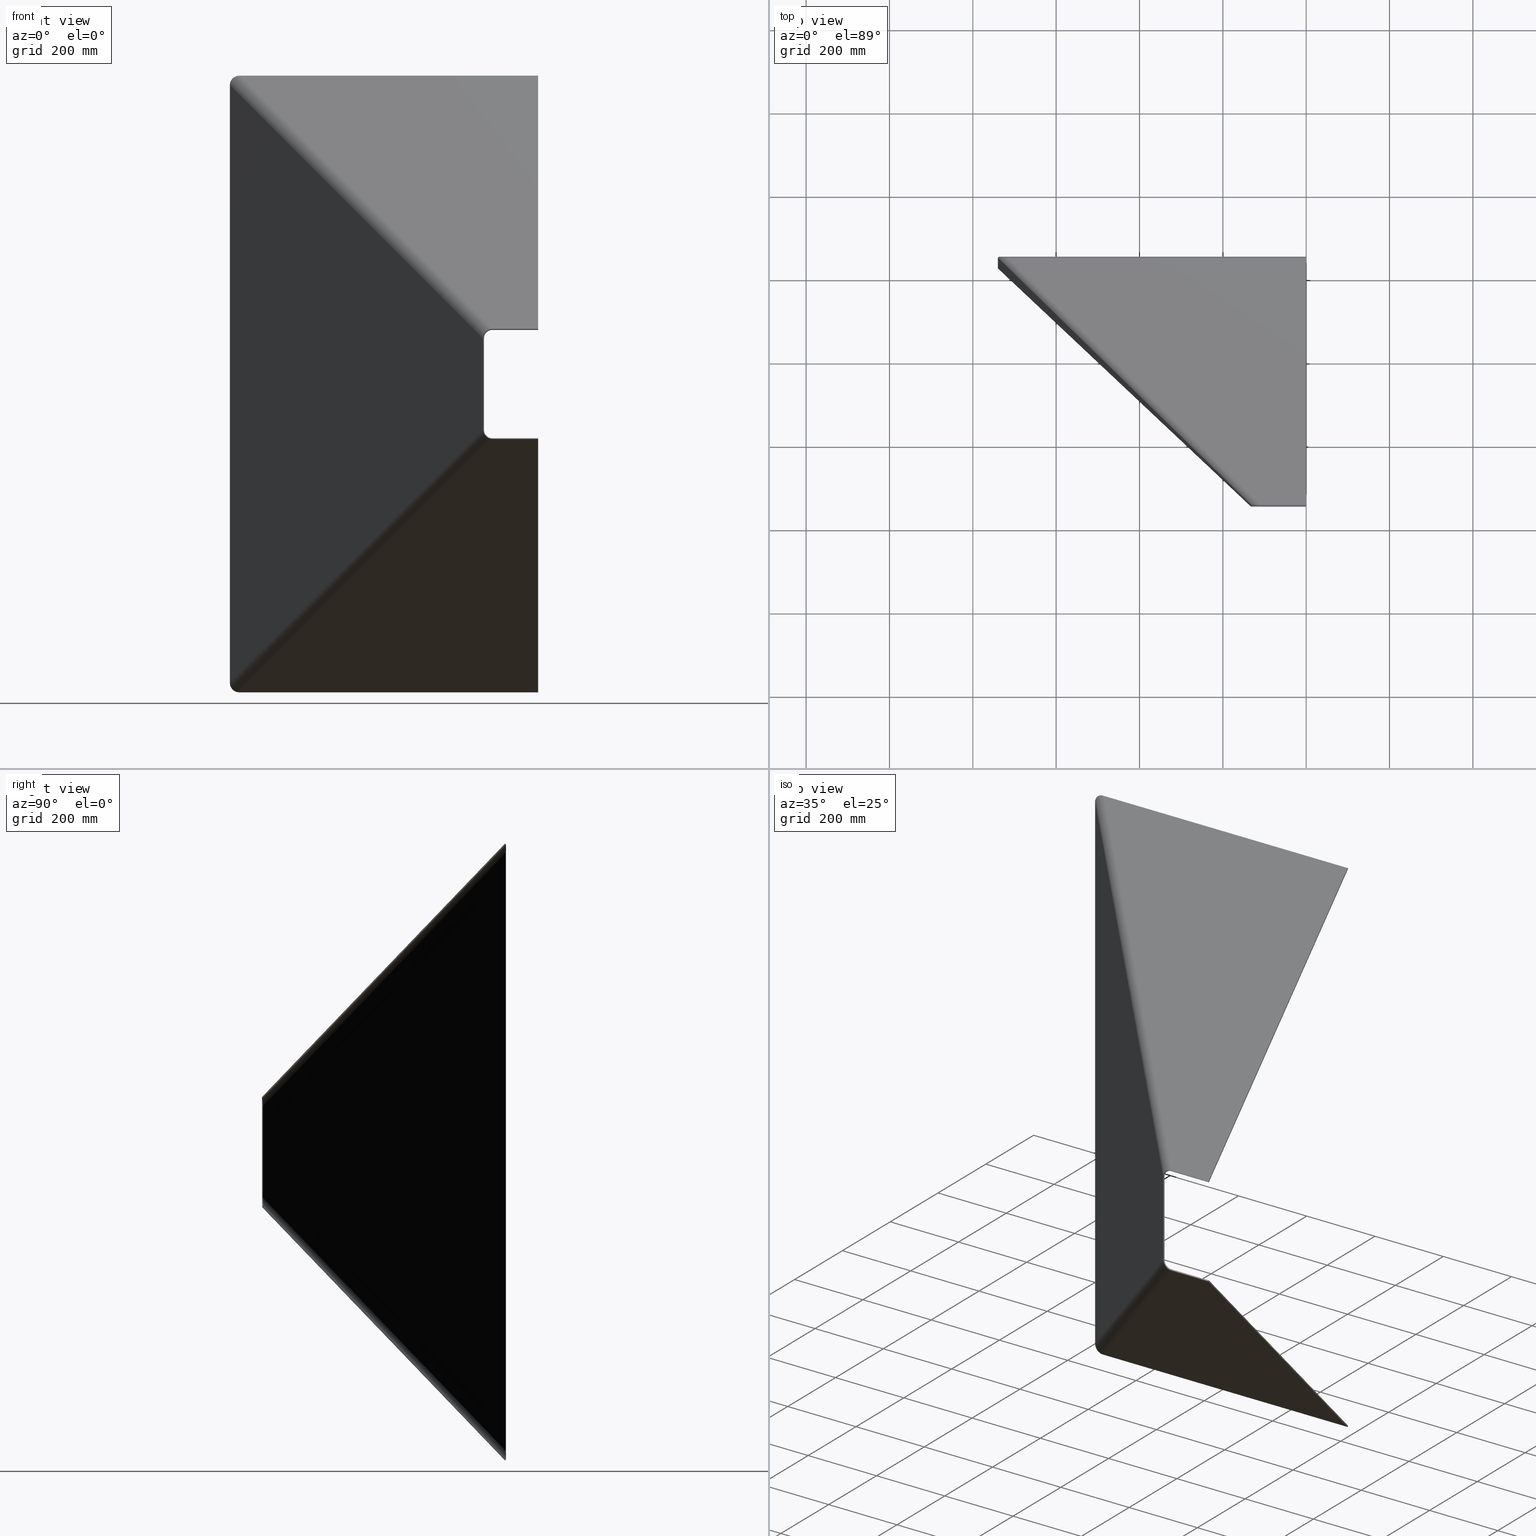
[diagram: canonical four-view strip — front | top / right | iso, engineering-drawing reading convention]
A machine part, canonical four-view strip (front | top / right | iso — engineering-drawing reading convention). The complete STEP part file that produces these views, byte-faithful:
ISO-10303-21;
HEADER;
FILE_DESCRIPTION (( 'STEP AP203' ),
    '1' );
FILE_NAME ('AWS-A-010332_REV_1.step',
    '2025-08-15T23:07:38',
    ( '' ),
    ( '' ),
    'SwSTEP 2.0',
    'SolidWorks 2024',
    '' );
FILE_SCHEMA (( 'CONFIG_CONTROL_DESIGN' ));
ENDSEC;

DATA;
#1 = CARTESIAN_POINT ( 'NONE',  ( -737.0268223936753884, 629.0000000000000000, -728.7003337007333812 ) ) ;
#2 = B_SPLINE_SURFACE_WITH_KNOTS ( 'NONE', 3, 1, ( 
 ( #35, #477 ),
 ( #782, #807 ),
 ( #284, #25 ),
 ( #351, #82 ) ),
 .UNSPECIFIED., .F., .F., .F.,
 ( 4, 4 ),
 ( 2, 2 ),
 ( 0.000000000000000000, 1.000000000000000000 ),
 ( 0.000000000000000000, 1.000000000000000000 ),
 .UNSPECIFIED. ) ;
#3 = CARTESIAN_POINT ( 'NONE',  ( -738.6157767800688134, 630.4435809909399495, -717.0000000000001137 ) ) ;
#4 = APPROVAL_ROLE ( '' ) ;
#5 = CARTESIAN_POINT ( 'NONE',  ( -716.9999999999998863, 629.0000000000000000, 740.0000000000001137 ) ) ;
#6 = CARTESIAN_POINT ( 'NONE',  ( -737.9236651701031633, 631.1653714864102085, -717.0000000000000000 ) ) ;
#7 = ORIENTED_EDGE ( 'NONE', *, *, #447, .F. ) ;
#8 = CARTESIAN_POINT ( 'NONE',  ( -9.307315673519885144E-14, 629.0000000000000000, 740.0000000000000000 ) ) ;
#9 = LOCAL_TIME ( 9, 7, 38.00000000000000000, #316 ) ;
#10 = ORIENTED_EDGE ( 'NONE', *, *, #79, .F. ) ;
#11 = CARTESIAN_POINT ( 'NONE',  ( -730.1394131048562031, 631.4830498748032142, -734.0001700317607174 ) ) ;
#12 = CARTESIAN_POINT ( 'NONE',  ( -127.5420898764364210, 48.46593349913584348, -119.8205280107419952 ) ) ;
#13 = EDGE_LOOP ( 'NONE', ( #606, #121, #480, #705 ) ) ;
#14 = CARTESIAN_POINT ( 'NONE',  ( -716.9999999999997726, 629.0000000000000000, -740.0000000000000000 ) ) ;
#15 = ADVANCED_FACE ( 'NONE', ( #390 ), #38, .T. ) ;
#16 = CARTESIAN_POINT ( 'NONE',  ( -737.0268223936756158, 629.0000000000000000, 728.7003337007336086 ) ) ;
#17 = DIRECTION ( 'NONE',  ( 1.000000000000000000, 0.000000000000000000, 0.000000000000000000 ) ) ;
#18 = ORIENTED_EDGE ( 'NONE', *, *, #586, .F. ) ;
#19 = CARTESIAN_POINT ( 'NONE',  ( -123.1786447873511889, 46.00000000000000000, 127.3418891338222778 ) ) ;
#20 = AXIS2_PLACEMENT_3D ( 'NONE', #682, #731, #457 ) ;
#21 = B_SPLINE_CURVE_WITH_KNOTS ( 'NONE', 3,
 ( #135, #398, #340, #602 ),
 .UNSPECIFIED., .F., .F.,
 ( 4, 4 ),
 ( 0.000000000000000000, 1.000000000000000000 ),
 .UNSPECIFIED. ) ;
#22 = ORIENTED_EDGE ( 'NONE', *, *, #301, .T. ) ;
#23 = LINE ( 'NONE', #750, #406 ) ;
#24 = EDGE_CURVE ( 'NONE', #176, #299, #622, .T. ) ;
#25 = CARTESIAN_POINT ( 'NONE',  ( -121.6940452282312748, 46.00000000000000000, -132.0000000000000000 ) ) ;
#26 = CARTESIAN_POINT ( 'NONE',  ( -314.5592245494583494, 242.6390577948969565, 332.7367033786110824 ) ) ;
#27 = CARTESIAN_POINT ( 'NONE',  ( -332.5903318367700194, 242.4987048197434660, 311.6666666666666856 ) ) ;
#28 = DIRECTION ( 'NONE',  ( 0.7217904954700603559, -0.6921116099655350018, 0.000000000000000000 ) ) ;
#29 = ORIENTED_EDGE ( 'NONE', *, *, #98, .F. ) ;
#30 = CARTESIAN_POINT ( 'NONE',  ( -719.8924450933141088, 631.3057189887816776, -738.0700310044805974 ) ) ;
#31 = CARTESIAN_POINT ( 'NONE',  ( -1.849216666712503261E-13, 629.0000000000000000, -740.0000000000000000 ) ) ;
#32 =( NAMED_UNIT ( * ) PLANE_ANGLE_UNIT ( ) SI_UNIT ( $, .RADIAN. ) );
#33 = CARTESIAN_POINT ( 'NONE',  ( -736.5601198852359630, 631.4212336046149403, 725.2586042538505353 ) ) ;
#34 = CARTESIAN_POINT ( 'NONE',  ( -132.0000000000000000, 46.00000000000000000, 109.0000000000000142 ) ) ;
#35 = CARTESIAN_POINT ( 'NONE',  ( -739.9999999999997726, 629.0000000000000000, -717.0000000000000000 ) ) ;
#36 = CC_DESIGN_APPROVAL ( #628, ( #80 ) ) ;
#37 = CARTESIAN_POINT ( 'NONE',  ( -129.9236651701034475, 48.16537148641014454, 109.0000000000000142 ) ) ;
#38 = B_SPLINE_SURFACE_WITH_KNOTS ( 'NONE', 1, 3, ( 
 ( #5, #584, #761, #253, #181, #590, #16, #515, #116, #441 ),
 ( #136, #772, #658, #322, #654, #133, #519, #195, #377, #712 ) ),
 .UNSPECIFIED., .F., .F., .F.,
 ( 2, 2 ),
 ( 4, 2, 2, 2, 4 ),
 ( 0.000000000000000000, 1.000000000000000000 ),
 ( 0.000000000000000000, 0.2500000000000000000, 0.5000000000000000000, 0.7500000000000000000, 1.000000000000000000 ),
 .UNSPECIFIED. ) ;
#39 = CARTESIAN_POINT ( 'NONE',  ( -532.8754232097695649, 437.1326001658025007, -525.1538613440753807 ) ) ;
#40 =( LENGTH_UNIT ( ) NAMED_UNIT ( * ) SI_UNIT ( .MILLI., .METRE. ) );
#41 = EDGE_CURVE ( 'NONE', #345, #524, #407, .T. ) ;
#42 = B_SPLINE_CURVE_WITH_KNOTS ( 'NONE', 3,
 ( #487, #673, #604, #793, #213, #498, #12, #661, #85, #400 ),
 .UNSPECIFIED., .F., .F.,
 ( 4, 2, 2, 2, 4 ),
 ( 0.000000000000000000, 0.2500000000000000000, 0.5000000000000000000, 0.7500000000000000000, 1.000000000000000000 ),
 .UNSPECIFIED. ) ;
#43 = CARTESIAN_POINT ( 'NONE',  ( -108.9999999999999858, 46.00000000000000000, -132.0000000000000000 ) ) ;
#44 = CARTESIAN_POINT ( 'NONE',  ( -326.7364582349750890, 242.8163832081365001, -326.7364582349752027 ) ) ;
#45 = COORDINATED_UNIVERSAL_TIME_OFFSET ( 10, 0, .AHEAD. ) ;
#46 = VERTEX_POINT ( 'NONE', #578 ) ;
#47 = B_SPLINE_SURFACE_WITH_KNOTS ( 'NONE', 3, 3, ( 
 ( #451, #466, #84, #714 ),
 ( #718, #265, #26, #791 ),
 ( #209, #388, #180, #725 ),
 ( #657, #384, #369, #329 ),
 ( #393, #528, #140, #639 ),
 ( #760, #202, #454, #56 ),
 ( #662, #599, #571, #823 ),
 ( #242, #434, #711, #131 ),
 ( #292, #278, #286, #612 ),
 ( #33, #810, #619, #669 ),
 ( #547, #541, #805, #609 ),
 ( #796, #554, #216, #482 ),
 ( #740, #160, #27, #412 ) ),
 .UNSPECIFIED., .F., .F., .F.,
 ( 4, 3, 3, 3, 4 ),
 ( 4, 4 ),
 ( -1.183291357831517708E-30, 0.2500000000000000000, 0.5000000000000000000, 0.7500000000000000000, 1.000000000000000000 ),
 ( 0.000000000000000000, 1.000000000000000000 ),
 .UNSPECIFIED. ) ;
#48 = CARTESIAN_POINT ( 'NONE',  ( -130.0700310044804837, 48.30571898878164916, -111.8924450933145920 ) ) ;
#49 = CARTESIAN_POINT ( 'NONE',  ( -129.9236651701033622, 48.16537148641018007, -109.0000000000000142 ) ) ;
#50 = CARTESIAN_POINT ( 'NONE',  ( -737.9236651701032770, 631.1653714864102085, 0.000000000000000000 ) ) ;
#51 = ORIENTED_EDGE ( 'NONE', *, *, #814, .F. ) ;
#52 = CARTESIAN_POINT ( 'NONE',  ( 0.000000000000000000, 48.16537148641020138, 129.9236651701034475 ) ) ;
#53 = VECTOR ( 'NONE', #245, 1000.000000000000114 ) ;
#54 = CARTESIAN_POINT ( 'NONE',  ( -2.220446049250313081E-13, 629.0000000000000000, -740.0000000000000000 ) ) ;
#55 = EDGE_CURVE ( 'NONE', #392, #403, #437, .T. ) ;
#56 = CARTESIAN_POINT ( 'NONE',  ( -122.1394131048563452, 48.48304987480319994, 126.0001700317607884 ) ) ;
#57 = ORIENTED_EDGE ( 'NONE', *, *, #342, .F. ) ;
#58 = CALENDAR_DATE ( 2025, 16, 8 ) ;
#59 = CARTESIAN_POINT ( 'NONE',  ( -717.0000000000001137, 631.1653714864103222, 737.9236651701036180 ) ) ;
#60 = CARTESIAN_POINT ( 'NONE',  ( -722.6966804969587201, 631.3765337100941224, 737.5781498940358460 ) ) ;
#61 = CARTESIAN_POINT ( 'NONE',  ( -727.8205280107417821, 631.4659334991358719, -735.5420898764363073 ) ) ;
#62 = B_SPLINE_SURFACE_WITH_KNOTS ( 'NONE', 3, 3, ( 
 ( #677, #230, #489, #49 ),
 ( #414, #423, #631, #681 ),
 ( #484, #368, #302, #741 ),
 ( #626, #166, #365, #565 ),
 ( #170, #39, #92, #818 ),
 ( #97, #287, #237, #806 ),
 ( #298, #356, #44, #637 ),
 ( #410, #621, #418, #499 ),
 ( #293, #686, #811, #232 ),
 ( #755, #350, #494, #226 ),
 ( #555, #103, #613, #361 ),
 ( #549, #174, #561, #815 ),
 ( #427, #544, #690, #695 ) ),
 .UNSPECIFIED., .F., .F., .F.,
 ( 4, 3, 3, 3, 4 ),
 ( 4, 4 ),
 ( 2.465190328815661892E-30, 0.2500000000000000000, 0.5000000000000000000, 0.7500000000000000000, 1.000000000000000000 ),
 ( 0.000000000000000000, 1.000000000000000000 ),
 .UNSPECIFIED. ) ;
#63 = DIRECTION ( 'NONE',  ( -0.7217904954700604669, 0.6921116099655350018, -9.189775539294275640E-17 ) ) ;
#64 = ORIENTED_EDGE ( 'NONE', *, *, #192, .F. ) ;
#65 = CARTESIAN_POINT ( 'NONE',  ( -728.7003337007332675, 629.0000000000000000, -737.0268223936756158 ) ) ;
#66 = PERSON_AND_ORGANIZATION ( #142, #276 ) ;
#67 = LOCAL_TIME ( 9, 7, 38.00000000000000000, #535 ) ;
#68 = EDGE_LOOP ( 'NONE', ( #326, #774, #396, #305 ) ) ;
#69 = CARTESIAN_POINT ( 'NONE',  ( -131.9999999999999716, 46.00000000000000000, -108.9999999999999574 ) ) ;
#70 = EDGE_CURVE ( 'NONE', #404, #715, #261, .T. ) ;
#71 = CARTESIAN_POINT ( 'NONE',  ( -109.0000000000000142, 48.16537148641018007, 129.9236651701033907 ) ) ;
#72 = ORIENTED_EDGE ( 'NONE', *, *, #222, .T. ) ;
#73 = PLANE ( 'NONE',  #87 ) ;
#74 = CARTESIAN_POINT ( 'NONE',  ( -127.3418891338222778, 46.00000000000000000, 123.1786447873511889 ) ) ;
#75 = CARTESIAN_POINT ( 'NONE',  ( -737.9236651701032770, 631.1653714864100948, -717.0000000000001137 ) ) ;
#76 = CARTESIAN_POINT ( 'NONE',  ( -121.6940452282313032, 46.00000000000000000, 132.0000000000000000 ) ) ;
#77 = CARTESIAN_POINT ( 'NONE',  ( -126.0001700317607600, 48.48304987480319994, 122.1394131048563452 ) ) ;
#78 = CC_DESIGN_PERSON_AND_ORGANIZATION_ASSIGNMENT ( #531, #719, ( #439 ) ) ;
#79 = EDGE_CURVE ( 'NONE', #95, #362, #395, .T. ) ;
#80 = PRODUCT_DEFINITION_FORMATION_WITH_SPECIFIED_SOURCE ( 'ANY', '', #439, .NOT_KNOWN. ) ;
#81 = PLANE ( 'NONE',  #211 ) ;
#82 = CARTESIAN_POINT ( 'NONE',  ( -108.9999999999999858, 46.00000000000000000, -132.0000000000000000 ) ) ;
#83 = ORIENTED_EDGE ( 'NONE', *, *, #24, .F. ) ;
#84 = CARTESIAN_POINT ( 'NONE',  ( -311.6666666666666288, 242.4987048197434660, 332.5903318367701331 ) ) ;
#85 = CARTESIAN_POINT ( 'NONE',  ( -130.0700310044804837, 48.30571898878164916, -111.8924450933145920 ) ) ;
#86 = AXIS2_PLACEMENT_3D ( 'NONE', #558, #303, #495 ) ;
#87 = AXIS2_PLACEMENT_3D ( 'NONE', #773, #128, #588 ) ;
#88 = VERTEX_POINT ( 'NONE', #787 ) ;
#89 = ADVANCED_FACE ( 'NONE', ( #462 ), #424, .T. ) ;
#90 = CARTESIAN_POINT ( 'NONE',  ( -727.8205280107417821, 631.4659334991358719, -735.5420898764363073 ) ) ;
#91 = CARTESIAN_POINT ( 'NONE',  ( -109.0000000000000426, 48.16537148641020138, -129.9236651701034475 ) ) ;
#92 = CARTESIAN_POINT ( 'NONE',  ( -330.2087565431029930, 242.7992668324691294, -322.4871946774086382 ) ) ;
#93 = PLANE ( 'NONE',  #250 ) ;
#94 = CARTESIAN_POINT ( 'NONE',  ( -132.0000000000000000, 46.00000000000000000, 109.0000000000000142 ) ) ;
#95 = VERTEX_POINT ( 'NONE', #171 ) ;
#96 = CARTESIAN_POINT ( 'NONE',  ( -130.0700310044805121, 48.30571898878164205, 111.8924450933145351 ) ) ;
#97 = CARTESIAN_POINT ( 'NONE',  ( -734.0001700317604900, 631.4830498748032142, -730.1394131048563167 ) ) ;
#98 = EDGE_CURVE ( 'NONE', #404, #463, #691, .T. ) ;
#99 = LINE ( 'NONE', #358, #672 ) ;
#100 = ORIENTED_EDGE ( 'NONE', *, *, #224, .T. ) ;
#101 = VECTOR ( 'NONE', #428, 1000.000000000000114 ) ;
#102 = DIRECTION ( 'NONE',  ( 0.000000000000000000, -0.7217904954700604669, -0.6921116099655350018 ) ) ;
#103 = CARTESIAN_POINT ( 'NONE',  ( -520.0300138302919777, 437.0432003767608649, -534.9114832273688762 ) ) ;
#104 = DIRECTION ( 'NONE',  ( -0.000000000000000000, 0.000000000000000000, -1.000000000000000000 ) ) ;
#105 = ORIENTED_EDGE ( 'NONE', *, *, #41, .F. ) ;
#106 = CARTESIAN_POINT ( 'NONE',  ( -127.3418891338222778, 46.00000000000000000, -123.1786447873511889 ) ) ;
#107 = DIRECTION ( 'NONE',  ( 0.5852604681659181463, -0.5611954818104117892, -0.5852604681659184793 ) ) ;
#108 = ORIENTED_EDGE ( 'NONE', *, *, #733, .F. ) ;
#109 = CARTESIAN_POINT ( 'NONE',  ( -131.9999999999999716, 46.00000000000000000, -112.1735113070577938 ) ) ;
#110 = ADVANCED_FACE ( 'NONE', ( #819 ), #743, .T. ) ;
#111 = CARTESIAN_POINT ( 'NONE',  ( -131.9999999999999716, 46.00000000000000000, -108.9999999999999574 ) ) ;
#112 = EDGE_LOOP ( 'NONE', ( #105, #158, #146, #563 ) ) ;
#113 = LINE ( 'NONE', #372, #320 ) ;
#114 =( GEOMETRIC_REPRESENTATION_CONTEXT ( 3 ) GLOBAL_UNCERTAINTY_ASSIGNED_CONTEXT ( ( #483 ) ) GLOBAL_UNIT_ASSIGNED_CONTEXT ( ( #40, #32, #157 ) ) REPRESENTATION_CONTEXT ( 'NONE', 'WORKASPACE' ) );
#115 = CARTESIAN_POINT ( 'NONE',  ( 0.000000000000000000, -41.97671491770171315, 40.25069867930936596 ) ) ;
#116 = CARTESIAN_POINT ( 'NONE',  ( -739.9999999999998863, 629.0000000000000000, 720.1735113070579928 ) ) ;
#117 = PERSON_AND_ORGANIZATION_ROLE ( 'classification_officer' ) ;
#118 = CARTESIAN_POINT ( 'NONE',  ( -738.0700310044803700, 631.3057189887816776, -719.8924450933143362 ) ) ;
#119 = ORIENTED_EDGE ( 'NONE', *, *, #800, .T. ) ;
#120 = CARTESIAN_POINT ( 'NONE',  ( -735.5420898764363073, 631.4659334991358719, 727.8205280107421231 ) ) ;
#121 = ORIENTED_EDGE ( 'NONE', *, *, #790, .F. ) ;
#122 = CARTESIAN_POINT ( 'NONE',  ( -737.9236651701032770, 631.1653714864102085, 717.0000000000001137 ) ) ;
#123 = EDGE_LOOP ( 'NONE', ( #789, #572, #246, #776 ) ) ;
#124 = APPROVAL_DATE_TIME ( #513, #628 ) ;
#125 = DIRECTION ( 'NONE',  ( 0.5852604681659182573, -0.5611954818104119003, 0.5852604681659184793 ) ) ;
#126 = EDGE_CURVE ( 'NONE', #299, #88, #687, .T. ) ;
#127 = ORIENTED_EDGE ( 'NONE', *, *, #222, .F. ) ;
#128 = DIRECTION ( 'NONE',  ( -1.000000000000000000, -7.647300536622483150E-17, -7.975229376100292875E-17 ) ) ;
#129 = VECTOR ( 'NONE', #627, 1000.000000000000000 ) ;
#130 = CC_DESIGN_APPROVAL ( #784, ( #357 ) ) ;
#131 = CARTESIAN_POINT ( 'NONE',  ( -126.0001700317607600, 48.48304987480319994, 122.1394131048563736 ) ) ;
#132 = B_SPLINE_CURVE_WITH_KNOTS ( 'NONE', 3,
 ( #792, #394, #212, #467, #730, #540, #90, #794, #30, #799 ),
 .UNSPECIFIED., .F., .F.,
 ( 4, 2, 2, 2, 4 ),
 ( 0.000000000000000000, 0.2500000000000000000, 0.5000000000000000000, 0.7500000000000000000, 1.000000000000000000 ),
 .UNSPECIFIED. ) ;
#133 = CARTESIAN_POINT ( 'NONE',  ( -734.0001700317606037, 631.4830498748032142, 730.1394131048564304 ) ) ;
#134 = CARTESIAN_POINT ( 'NONE',  ( -535.2569985034367619, 436.8320381530768373, 514.3333333333333712 ) ) ;
#135 = CARTESIAN_POINT ( 'NONE',  ( -129.9236651701034475, 48.16537148641014454, 109.0000000000000142 ) ) ;
#136 = CARTESIAN_POINT ( 'NONE',  ( -716.9999999999998863, 631.1653714864102085, 737.9236651701035044 ) ) ;
#137 = PLANE ( 'NONE',  #723 ) ;
#138 = VERTEX_POINT ( 'NONE', #295 ) ;
#139 = EDGE_CURVE ( 'NONE', #151, #176, #164, .T. ) ;
#140 = CARTESIAN_POINT ( 'NONE',  ( -322.4871946774085814, 242.7992668324691294, 330.2087565431031067 ) ) ;
#141 = CARTESIAN_POINT ( 'NONE',  ( -108.9999999999999858, 46.00000000000000000, -132.0000000000000000 ) ) ;
#142 = PERSON ( 'UNSPECIFIED', 'UNSPECIFIED', 'UNSPECIFIED', ('UNSPECIFIED'), ('UNSPECIFIED'), ('UNSPECIFIED') ) ;
#143 = APPLICATION_PROTOCOL_DEFINITION ( 'international standard', 'config_control_design', 1994, #724 ) ;
#144 = CARTESIAN_POINT ( 'NONE',  ( -127.5420898764364495, 48.46593349913584348, 119.8205280107419952 ) ) ;
#145 = VECTOR ( 'NONE', #201, 1000.000000000000000 ) ;
#146 = ORIENTED_EDGE ( 'NONE', *, *, #824, .T. ) ;
#147 = PERSON_AND_ORGANIZATION ( #142, #276 ) ;
#148 = B_SPLINE_CURVE_WITH_KNOTS ( 'NONE', 3,
 ( #269, #455, #663, #534 ),
 .UNSPECIFIED., .F., .F.,
 ( 4, 4 ),
 ( 0.000000000000000000, 1.000000000000000000 ),
 .UNSPECIFIED. ) ;
#149 = CARTESIAN_POINT ( 'NONE',  ( -412.9999999999998863, 337.5000000000000000, -436.0000000000000000 ) ) ;
#150 = ADVANCED_FACE ( 'NONE', ( #415 ), #233, .T. ) ;
#151 = VERTEX_POINT ( 'NONE', #752 ) ;
#152 = DIRECTION ( 'NONE',  ( -0.000000000000000000, -0.6921116099655348908, 0.7217904954700603559 ) ) ;
#153 = VECTOR ( 'NONE', #608, 1000.000000000000114 ) ;
#154 = DIRECTION ( 'NONE',  ( 0.000000000000000000, -0.7217904954700604669, 0.6921116099655347798 ) ) ;
#155 = ORIENTED_EDGE ( 'NONE', *, *, #275, .F. ) ;
#156 = FACE_OUTER_BOUND ( 'NONE', #595, .T. ) ;
#157 =( NAMED_UNIT ( * ) SI_UNIT ( $, .STERADIAN. ) SOLID_ANGLE_UNIT ( ) );
#158 = ORIENTED_EDGE ( 'NONE', *, *, #500, .T. ) ;
#159 = CARTESIAN_POINT ( 'NONE',  ( -131.3558778267644129, 46.00000000000000000, -115.1977669605867618 ) ) ;
#160 = CARTESIAN_POINT ( 'NONE',  ( -535.2569985034367619, 436.8320381530768373, 514.3333333333333712 ) ) ;
#161 = EDGE_CURVE ( 'NONE', #532, #496, #756, .T. ) ;
#162 = CARTESIAN_POINT ( 'NONE',  ( -109.0000000000000711, 48.16537148641020138, 129.9236651701034475 ) ) ;
#163 = CARTESIAN_POINT ( 'NONE',  ( -716.9999999999997726, 631.1653714864102085, -737.9236651701033907 ) ) ;
#164 = LINE ( 'NONE', #50, #448 ) ;
#165 = CARTESIAN_POINT ( 'NONE',  ( -123.1786447873511889, 46.00000000000000000, -127.3418891338222778 ) ) ;
#166 = CARTESIAN_POINT ( 'NONE',  ( -533.8934532185692206, 437.0879002712816828, -522.5919375871837929 ) ) ;
#167 = DIRECTION ( 'NONE',  ( 1.000000000000000000, 1.519397869776309257E-16, -1.584552152356768437E-16 ) ) ;
#168 = ORIENTED_EDGE ( 'NONE', *, *, #636, .F. ) ;
#169 = CARTESIAN_POINT ( 'NONE',  ( -2.220446049250314091E-13, 631.1653714864104359, -737.9236651701035044 ) ) ;
#170 = CARTESIAN_POINT ( 'NONE',  ( -735.5420898764360800, 631.4659334991358719, -727.8205280107420094 ) ) ;
#171 = CARTESIAN_POINT ( 'NONE',  ( -739.9999999999998863, 629.0000000000000000, 717.0000000000001137 ) ) ;
#172 = ORIENTED_EDGE ( 'NONE', *, *, #614, .T. ) ;
#173 = PLANE ( 'NONE',  #264 ) ;
#174 = CARTESIAN_POINT ( 'NONE',  ( -517.2258912161249782, 436.9723911282303561, -535.4033700452778248 ) ) ;
#175 = CARTESIAN_POINT ( 'NONE',  ( -9.307315673519885144E-14, 629.0000000000000000, 740.0000000000000000 ) ) ;
#176 = VERTEX_POINT ( 'NONE', #696 ) ;
#177 = ADVANCED_FACE ( 'NONE', ( #610 ), #623, .F. ) ;
#178 = LINE ( 'NONE', #312, #289 ) ;
#179 = CARTESIAN_POINT ( 'NONE',  ( -737.5781498940356187, 631.3765337100941224, 722.6966804969590612 ) ) ;
#180 = CARTESIAN_POINT ( 'NONE',  ( -317.3633471636254058, 242.7098670434274368, 332.2448165607023611 ) ) ;
#181 = CARTESIAN_POINT ( 'NONE',  ( -731.1786447873511179, 629.0000000000000000, 735.3418891338224057 ) ) ;
#182 = VECTOR ( 'NONE', #766, 1000.000000000000000 ) ;
#183 = CC_DESIGN_PERSON_AND_ORGANIZATION_ASSIGNMENT ( #785, #726, ( #456 ) ) ;
#184 = CARTESIAN_POINT ( 'NONE',  ( -132.0000000000000000, 46.00000000000000000, 109.0000000000000142 ) ) ;
#185 = AXIS2_PLACEMENT_3D ( 'NONE', #481, #102, #739 ) ;
#186 = CARTESIAN_POINT ( 'NONE',  ( -109.0000000000000142, 46.00000000000000000, 132.0000000000000000 ) ) ;
#187 = PRODUCT_DEFINITION_SHAPE ( 'NONE', 'NONE',  #456 ) ;
#188 = ORIENTED_EDGE ( 'NONE', *, *, #824, .F. ) ;
#189 = CARTESIAN_POINT ( 'NONE',  ( -739.9999999999997726, 629.0000000000000000, 717.0000000000001137 ) ) ;
#190 = ORIENTED_EDGE ( 'NONE', *, *, #41, .T. ) ;
#191 = LINE ( 'NONE', #8, #53 ) ;
#192 = EDGE_CURVE ( 'NONE', #88, #362, #21, .T. ) ;
#193 = B_SPLINE_CURVE_WITH_KNOTS ( 'NONE', 3,
 ( #801, #219, #476, #735 ),
 .UNSPECIFIED., .F., .F.,
 ( 4, 4 ),
 ( 0.000000000000000000, 1.000000000000000000 ),
 .UNSPECIFIED. ) ;
#194 = CARTESIAN_POINT ( 'NONE',  ( -119.8205280107419952, 48.46593349913584348, 127.5420898764364495 ) ) ;
#195 = CARTESIAN_POINT ( 'NONE',  ( -737.5781498940356187, 631.3765337100941224, 722.6966804969590612 ) ) ;
#196 = CARTESIAN_POINT ( 'NONE',  ( -111.8924450933145351, 48.30571898878164205, 130.0700310044805121 ) ) ;
#197 = ORIENTED_EDGE ( 'NONE', *, *, #670, .T. ) ;
#198 = VECTOR ( 'NONE', #408, 1000.000000000000000 ) ;
#199 = CARTESIAN_POINT ( 'NONE',  ( -115.1977669605867618, 46.00000000000000000, 131.3558778267644698 ) ) ;
#200 = ADVANCED_FACE ( 'NONE', ( #667 ), #47, .F. ) ;
#201 = DIRECTION ( 'NONE',  ( -1.273191542001326317E-16, -0.000000000000000000, 1.000000000000000000 ) ) ;
#202 = CARTESIAN_POINT ( 'NONE',  ( -527.4727464381896880, 437.1497165414698998, 531.3335033650943160 ) ) ;
#203 = LINE ( 'NONE', #31, #803 ) ;
#204 = CARTESIAN_POINT ( 'NONE',  ( -716.9999999999997726, 629.0000000000000000, -740.0000000000000000 ) ) ;
#205 = FACE_OUTER_BOUND ( 'NONE', #13, .T. ) ;
#206 = CARTESIAN_POINT ( 'NONE',  ( -121.6940452282312748, 46.00000000000000000, -132.0000000000000000 ) ) ;
#207 = DIRECTION ( 'NONE',  ( 0.000000000000000000, -0.6921116099655347798, -0.7217904954700604669 ) ) ;
#208 = ORIENTED_EDGE ( 'NONE', *, *, #607, .F. ) ;
#209 = CARTESIAN_POINT ( 'NONE',  ( -722.6966804969587201, 631.3765337100941224, 737.5781498940358460 ) ) ;
#210 = ADVANCED_BREP_SHAPE_REPRESENTATION ( 'AWS-A-010332_REV_1', ( #460, #333 ), #114 ) ;
#211 = AXIS2_PLACEMENT_3D ( 'NONE', #346, #28, #274 ) ;
#212 = CARTESIAN_POINT ( 'NONE',  ( -737.5781498940353913, 631.3765337100941224, -722.6966804969588338 ) ) ;
#213 = CARTESIAN_POINT ( 'NONE',  ( -122.1394131048563452, 48.48304987480319994, -126.0001700317607600 ) ) ;
#214 = EDGE_CURVE ( 'NONE', #46, #671, #355, .T. ) ;
#215 = LINE ( 'NONE', #470, #665 ) ;
#216 = CARTESIAN_POINT ( 'NONE',  ( -332.7367033786110255, 242.6390577948969565, 314.5592245494584063 ) ) ;
#217 = CARTESIAN_POINT ( 'NONE',  ( -129.9236651701034191, 48.16537148641010191, -108.9999999999999574 ) ) ;
#218 = ORIENTED_EDGE ( 'NONE', *, *, #70, .T. ) ;
#219 = CARTESIAN_POINT ( 'NONE',  ( -729.6940452282311753, 629.0000000000000000, 740.0000000000001137 ) ) ;
#220 = LOCAL_TIME ( 9, 7, 38.00000000000000000, #45 ) ;
#221 = FACE_OUTER_BOUND ( 'NONE', #332, .T. ) ;
#222 = EDGE_CURVE ( 'NONE', #403, #299, #42, .T. ) ;
#223 = ORIENTED_EDGE ( 'NONE', *, *, #405, .T. ) ;
#224 = EDGE_CURVE ( 'NONE', #404, #403, #493, .T. ) ;
#225 = LINE ( 'NONE', #804, #734 ) ;
#226 = CARTESIAN_POINT ( 'NONE',  ( -117.2586042538503790, 48.42123360461498294, -128.5601198852360767 ) ) ;
#227 = CARTESIAN_POINT ( 'NONE',  ( 0.000000000000000000, 0.000000000000000000, 0.000000000000000000 ) ) ;
#228 = DIRECTION ( 'NONE',  ( 0.000000000000000000, 0.6921116099655350018, -0.7217904954700604669 ) ) ;
#229 = CARTESIAN_POINT ( 'NONE',  ( -9.307315673519890192E-14, -39.81134343129152597, 38.17436384941276373 ) ) ;
#230 = CARTESIAN_POINT ( 'NONE',  ( -535.2569985034366482, 436.8320381530768373, -514.3333333333332575 ) ) ;
#231 = CARTESIAN_POINT ( 'NONE',  ( -114.6966804969588338, 48.37653371009412240, -129.5781498940357039 ) ) ;
#232 = CARTESIAN_POINT ( 'NONE',  ( -119.8205280107419526, 48.46593349913584348, -127.5420898764364779 ) ) ;
#233 = PLANE ( 'NONE',  #86 ) ;
#234 = VECTOR ( 'NONE', #125, 1000.000000000000114 ) ;
#235 = ORIENTED_EDGE ( 'NONE', *, *, #594, .T. ) ;
#236 = DIRECTION ( 'NONE',  ( 0.000000000000000000, -0.7217904954700603559, -0.6921116099655348908 ) ) ;
#237 = CARTESIAN_POINT ( 'NONE',  ( -328.6668366984273462, 242.8163832081365001, -324.8060797715230592 ) ) ;
#238 = EDGE_CURVE ( 'NONE', #634, #359, #471, .T. ) ;
#239 = EDGE_LOOP ( 'NONE', ( #64, #769, #190, #108 ) ) ;
#240 = CARTESIAN_POINT ( 'NONE',  ( -127.5420898764364210, 48.46593349913584348, -119.8205280107419952 ) ) ;
#241 = DIRECTION ( 'NONE',  ( 0.000000000000000000, -0.6921116099655347798, -0.7217904954700605780 ) ) ;
#242 = CARTESIAN_POINT ( 'NONE',  ( -734.0001700317606037, 631.4830498748032142, 730.1394131048565441 ) ) ;
#243 = CARTESIAN_POINT ( 'NONE',  ( -129.9236651701034191, 48.16537148641010191, -108.9999999999999574 ) ) ;
#244 = CARTESIAN_POINT ( 'NONE',  ( -735.3418891338220647, 629.0000000000000000, -731.1786447873512316 ) ) ;
#245 = DIRECTION ( 'NONE',  ( 0.000000000000000000, -0.7217904954700604669, 0.6921116099655347798 ) ) ;
#246 = ORIENTED_EDGE ( 'NONE', *, *, #447, .T. ) ;
#247 = B_SPLINE_CURVE_WITH_KNOTS ( 'NONE', 3,
 ( #122, #134, #713, #323 ),
 .UNSPECIFIED., .F., .F.,
 ( 4, 4 ),
 ( 0.000000000000000000, 1.000000000000000000 ),
 .UNSPECIFIED. ) ;
#248 = CARTESIAN_POINT ( 'NONE',  ( 2.465190328815663013E-29, 48.16537148641006638, 129.9236651701032770 ) ) ;
#249 = ADVANCED_FACE ( 'NONE', ( #668 ), #81, .F. ) ;
#250 = AXIS2_PLACEMENT_3D ( 'NONE', #788, #154, #207 ) ;
#251 = CALENDAR_DATE ( 2025, 16, 8 ) ;
#252 = DIRECTION ( 'NONE',  ( 0.000000000000000000, -0.6921116099655347798, -0.7217904954700604669 ) ) ;
#253 = CARTESIAN_POINT ( 'NONE',  ( -728.7003337007332675, 629.0000000000000000, 737.0268223936757295 ) ) ;
#254 = APPROVAL_ROLE ( '' ) ;
#255 = CARTESIAN_POINT ( 'NONE',  ( -737.9236651701032770, 631.1653714864102085, 717.0000000000001137 ) ) ;
#256 = PERSON_AND_ORGANIZATION_ROLE ( 'creator' ) ;
#257 = CARTESIAN_POINT ( 'NONE',  ( -737.5781498940353913, 631.3765337100941224, -722.6966804969588338 ) ) ;
#258 = APPROVAL_ROLE ( '' ) ;
#259 = CARTESIAN_POINT ( 'NONE',  ( -120.7003337007334380, 46.00000000000000000, 129.0268223936756158 ) ) ;
#260 = LINE ( 'NONE', #141, #509 ) ;
#261 = B_SPLINE_CURVE_WITH_KNOTS ( 'NONE', 1,
 ( #402, #204 ),
 .UNSPECIFIED., .F., .F.,
 ( 2, 2 ),
 ( 0.000000000000000000, 1.000000000000000000 ),
 .UNSPECIFIED. ) ;
#262 = DIRECTION ( 'NONE',  ( 0.000000000000000000, 0.000000000000000000, -1.000000000000000000 ) ) ;
#263 = ORIENTED_EDGE ( 'NONE', *, *, #161, .F. ) ;
#264 = AXIS2_PLACEMENT_3D ( 'NONE', #431, #228, #697 ) ;
#265 = CARTESIAN_POINT ( 'NONE',  ( -517.2258912161249782, 436.9723911282303561, 535.4033700452779385 ) ) ;
#266 = CARTESIAN_POINT ( 'NONE',  ( -719.8924450933141088, 631.3057189887816776, -738.0700310044805974 ) ) ;
#267 = EDGE_LOOP ( 'NONE', ( #290, #425, #611, #18 ) ) ;
#268 = CARTESIAN_POINT ( 'NONE',  ( -130.0700310044805121, 48.30571898878164205, 111.8924450933145351 ) ) ;
#269 = CARTESIAN_POINT ( 'NONE',  ( -717.0000000000001137, 631.1653714864103222, 737.9236651701036180 ) ) ;
#270 = CC_DESIGN_DATE_AND_TIME_ASSIGNMENT ( #336, #306, ( #357 ) ) ;
#271 = CARTESIAN_POINT ( 'NONE',  ( -739.9999999999997726, 629.0000000000000000, -729.6940452282312890 ) ) ;
#272 = EDGE_LOOP ( 'NONE', ( #580, #692, #660, #188 ) ) ;
#273 = CARTESIAN_POINT ( 'NONE',  ( -114.6966804969588338, 48.37653371009412240, 129.5781498940357039 ) ) ;
#274 = DIRECTION ( 'NONE',  ( 0.000000000000000000, 0.000000000000000000, -1.000000000000000000 ) ) ;
#275 = EDGE_CURVE ( 'NONE', #715, #634, #538, .T. ) ;
#276 = ORGANIZATION ( 'UNSPECIFIED', 'UNSPECIFIED', '' ) ;
#277 = ORIENTED_EDGE ( 'NONE', *, *, #126, .F. ) ;
#278 = CARTESIAN_POINT ( 'NONE',  ( -532.8754232097696786, 437.1326001658025007, 525.1538613440753807 ) ) ;
#279 = B_SPLINE_CURVE_WITH_KNOTS ( 'NONE', 3,
 ( #59, #553, #569, #364 ),
 .UNSPECIFIED., .F., .F.,
 ( 4, 4 ),
 ( 0.000000000000000000, 1.000000000000000000 ),
 .UNSPECIFIED. ) ;
#280 = EDGE_LOOP ( 'NONE', ( #83, #816, #757, #277 ) ) ;
#281 = EDGE_CURVE ( 'NONE', #176, #404, #132, .T. ) ;
#282 = PLANE ( 'NONE',  #638 ) ;
#283 = EDGE_CURVE ( 'NONE', #463, #392, #215, .T. ) ;
#284 = CARTESIAN_POINT ( 'NONE',  ( -729.6940452282310616, 629.0000000000000000, -740.0000000000000000 ) ) ;
#285 = ORIENTED_EDGE ( 'NONE', *, *, #586, .T. ) ;
#286 = CARTESIAN_POINT ( 'NONE',  ( -330.2087565431031067, 242.7992668324691579, 322.4871946774086950 ) ) ;
#287 = CARTESIAN_POINT ( 'NONE',  ( -531.3335033650939749, 437.1497165414698998, -527.4727464381896880 ) ) ;
#288 = VECTOR ( 'NONE', #600, 1000.000000000000114 ) ;
#289 = VECTOR ( 'NONE', #236, 1000.000000000000114 ) ;
#290 = ORIENTED_EDGE ( 'NONE', *, *, #399, .F. ) ;
#291 = CARTESIAN_POINT ( 'NONE',  ( -126.0001700317607600, 48.48304987480319994, 122.1394131048563452 ) ) ;
#292 = CARTESIAN_POINT ( 'NONE',  ( -735.5420898764363073, 631.4659334991358719, 727.8205280107421231 ) ) ;
#293 = CARTESIAN_POINT ( 'NONE',  ( -727.8205280107416684, 631.4659334991358719, -735.5420898764363073 ) ) ;
#294 = DIRECTION ( 'NONE',  ( 0.000000000000000000, 0.000000000000000000, 1.000000000000000000 ) ) ;
#295 = CARTESIAN_POINT ( 'NONE',  ( -717.0000000000001137, 631.1653714864103222, 737.9236651701036180 ) ) ;
#296 = ORIENTED_EDGE ( 'NONE', *, *, #814, .T. ) ;
#297 = PLANE ( 'NONE',  #185 ) ;
#298 = CARTESIAN_POINT ( 'NONE',  ( -732.0697915683083465, 631.4830498748032142, -732.0697915683085739 ) ) ;
#299 = VERTEX_POINT ( 'NONE', #217 ) ;
#300 = CARTESIAN_POINT ( 'NONE',  ( -112.1735113070578223, 46.00000000000000000, -132.0000000000000000 ) ) ;
#301 = EDGE_CURVE ( 'NONE', #717, #634, #260, .T. ) ;
#302 = CARTESIAN_POINT ( 'NONE',  ( -332.2448165607022474, 242.7098670434274368, -317.3633471636255194 ) ) ;
#303 = DIRECTION ( 'NONE',  ( 0.6921116099655350018, 0.7217904954700603559, 0.000000000000000000 ) ) ;
#304 = CC_DESIGN_APPROVAL ( #479, ( #456 ) ) ;
#305 = ORIENTED_EDGE ( 'NONE', *, *, #594, .F. ) ;
#306 = DATE_TIME_ROLE ( 'classification_date' ) ;
#307 = FACE_OUTER_BOUND ( 'NONE', #380, .T. ) ;
#308 = DIRECTION ( 'NONE',  ( 0.000000000000000000, -0.7217904954700603559, -0.6921116099655348908 ) ) ;
#309 = CARTESIAN_POINT ( 'NONE',  ( -111.8924450933145351, 48.30571898878164205, 130.0700310044805121 ) ) ;
#310 = ORIENTED_EDGE ( 'NONE', *, *, #238, .T. ) ;
#311 = APPROVAL_DATE_TIME ( #511, #784 ) ;
#312 = CARTESIAN_POINT ( 'NONE',  ( 0.000000000000000000, 46.00000000000000000, -132.0000000000000000 ) ) ;
#313 = DIRECTION ( 'NONE',  ( 1.000000000000000000, 0.000000000000000000, 0.000000000000000000 ) ) ;
#314 = EDGE_CURVE ( 'NONE', #624, #717, #203, .T. ) ;
#315 = CARTESIAN_POINT ( 'NONE',  ( -109.0000000000000142, 46.00000000000000000, 132.0000000000000000 ) ) ;
#316 = COORDINATED_UNIVERSAL_TIME_OFFSET ( 10, 0, .AHEAD. ) ;
#317 = CARTESIAN_POINT ( 'NONE',  ( -734.0001700317606037, 631.4830498748032142, -730.1394131048563167 ) ) ;
#318 = CARTESIAN_POINT ( 'NONE',  ( -719.8924450933142225, 631.3057189887816776, 738.0700310044805974 ) ) ;
#319 = CARTESIAN_POINT ( 'NONE',  ( -739.9999999999998863, 629.0000000000000000, 717.0000000000001137 ) ) ;
#320 = VECTOR ( 'NONE', #641, 1000.000000000000000 ) ;
#321 = DATE_AND_TIME ( #251, #436 ) ;
#322 = CARTESIAN_POINT ( 'NONE',  ( -727.8205280107417821, 631.4659334991358719, 735.5420898764365347 ) ) ;
#323 = CARTESIAN_POINT ( 'NONE',  ( -129.9236651701034475, 48.16537148641014454, 109.0000000000000142 ) ) ;
#324 = DATE_TIME_ROLE ( 'creation_date' ) ;
#325 = CARTESIAN_POINT ( 'NONE',  ( -119.8205280107419952, 48.46593349913584348, 127.5420898764364495 ) ) ;
#326 = ORIENTED_EDGE ( 'NONE', *, *, #70, .F. ) ;
#327 = PLANE ( 'NONE',  #620 ) ;
#328 = ORIENTED_EDGE ( 'NONE', *, *, #24, .T. ) ;
#329 = CARTESIAN_POINT ( 'NONE',  ( -117.2586042538504074, 48.42123360461498294, 128.5601198852360767 ) ) ;
#330 = EDGE_CURVE ( 'NONE', #138, #505, #148, .T. ) ;
#331 = CARTESIAN_POINT ( 'NONE',  ( -332.5903318367699626, 242.4987048197434660, -311.6666666666666288 ) ) ;
#332 = EDGE_LOOP ( 'NONE', ( #443, #650, #10, #598 ) ) ;
#333 = AXIS2_PLACEMENT_3D ( 'NONE', #227, #294, #557 ) ;
#334 = CARTESIAN_POINT ( 'NONE',  ( -129.0268223936756158, 46.00000000000000000, 120.7003337007334380 ) ) ;
#335 = CC_DESIGN_PERSON_AND_ORGANIZATION_ASSIGNMENT ( #66, #256, ( #80 ) ) ;
#336 = DATE_AND_TIME ( #430, #9 ) ;
#337 = CARTESIAN_POINT ( 'NONE',  ( -435.9999999999999432, 337.5000000000000000, 413.0000000000000568 ) ) ;
#338 = APPROVAL_STATUS ( 'not_yet_approved' ) ;
#339 = PRODUCT_RELATED_PRODUCT_CATEGORY ( 'detail', '', ( #439 ) ) ;
#340 = CARTESIAN_POINT ( 'NONE',  ( -131.3078883900344920, 46.72179049547004581, 109.0000000000000142 ) ) ;
#341 = CARTESIAN_POINT ( 'NONE',  ( -131.9999999999999716, 46.00000000000000000, -108.9999999999999574 ) ) ;
#342 = EDGE_CURVE ( 'NONE', #505, #524, #23, .T. ) ;
#343 = ORIENTED_EDGE ( 'NONE', *, *, #55, .F. ) ;
#344 = CARTESIAN_POINT ( 'NONE',  ( -514.3333333333331439, 436.8320381530768373, -535.2569985034367619 ) ) ;
#345 = VERTEX_POINT ( 'NONE', #162 ) ;
#346 = CARTESIAN_POINT ( 'NONE',  ( -739.9999999999997726, 629.0000000000000000, 717.0000000000001137 ) ) ;
#347 = ADVANCED_FACE ( 'NONE', ( #746 ), #62, .F. ) ;
#348 = DIRECTION ( 'NONE',  ( -1.000000000000000000, -0.000000000000000000, -0.000000000000000000 ) ) ;
#349 = CARTESIAN_POINT ( 'NONE',  ( -108.9999999999999858, 46.72179049547005292, -131.3078883900344920 ) ) ;
#350 = CARTESIAN_POINT ( 'NONE',  ( -522.5919375871835655, 437.0879002712816828, -533.8934532185693342 ) ) ;
#351 = CARTESIAN_POINT ( 'NONE',  ( -716.9999999999997726, 629.0000000000000000, -740.0000000000000000 ) ) ;
#352 = CARTESIAN_POINT ( 'NONE',  ( -129.9236651701034191, 48.16537148641010191, 0.000000000000000000 ) ) ;
#353 = EDGE_LOOP ( 'NONE', ( #728, #72, #629, #527 ) ) ;
#354 = CARTESIAN_POINT ( 'NONE',  ( -129.5781498940357039, 48.37653371009412240, 114.6966804969588338 ) ) ;
#355 = LINE ( 'NONE', #229, #583 ) ;
#356 = CARTESIAN_POINT ( 'NONE',  ( -529.4031249016417178, 437.1497165414698998, -529.4031249016418315 ) ) ;
#357 = SECURITY_CLASSIFICATION ( '', '', #783 ) ;
#358 = CARTESIAN_POINT ( 'NONE',  ( 2.465190328815661892E-29, 45.99999999999981526, 131.9999999999998863 ) ) ;
#359 = VERTEX_POINT ( 'NONE', #111 ) ;
#360 = CARTESIAN_POINT ( 'NONE',  ( -108.9999999999999858, 46.00000000000000000, -132.0000000000000000 ) ) ;
#361 = CARTESIAN_POINT ( 'NONE',  ( -114.6966804969587912, 48.37653371009412240, -129.5781498940356755 ) ) ;
#362 = VERTEX_POINT ( 'NONE', #34 ) ;
#363 = EDGE_CURVE ( 'NONE', #505, #95, #193, .T. ) ;
#364 = CARTESIAN_POINT ( 'NONE',  ( -109.0000000000000711, 48.16537148641020138, 129.9236651701034475 ) ) ;
#365 = CARTESIAN_POINT ( 'NONE',  ( -331.2267865519026486, 242.7545669379482831, -319.9252709205171072 ) ) ;
#366 = EDGE_LOOP ( 'NONE', ( #753, #675, #617, #385 ) ) ;
#367 = FACE_OUTER_BOUND ( 'NONE', #551, .T. ) ;
#368 = CARTESIAN_POINT ( 'NONE',  ( -534.9114832273687625, 437.0432003767608649, -520.0300138302922051 ) ) ;
#369 = CARTESIAN_POINT ( 'NONE',  ( -319.9252709205170504, 242.7545669379482831, 331.2267865519027623 ) ) ;
#370 = VECTOR ( 'NONE', #17, 1000.000000000000000 ) ;
#371 = ORIENTED_EDGE ( 'NONE', *, *, #405, .F. ) ;
#372 = CARTESIAN_POINT ( 'NONE',  ( -9.307315673519885144E-14, 629.0000000000000000, 740.0000000000000000 ) ) ;
#373 = DESIGN_CONTEXT ( 'detailed design', #724, 'design' ) ;
#374 = APPROVAL_STATUS ( 'not_yet_approved' ) ;
#375 = PLANE ( 'NONE',  #700 ) ;
#376 = ADVANCED_FACE ( 'NONE', ( #156 ), #282, .T. ) ;
#377 = CARTESIAN_POINT ( 'NONE',  ( -738.0700310044804837, 631.3057189887816776, 719.8924450933144499 ) ) ;
#378 = DIRECTION ( 'NONE',  ( 0.000000000000000000, -0.7217904954700604669, -0.6921116099655350018 ) ) ;
#379 = CARTESIAN_POINT ( 'NONE',  ( 0.000000000000000000, 48.16537148641020138, -129.9236651701034475 ) ) ;
#380 = EDGE_LOOP ( 'NONE', ( #543, #29, #100, #343 ) ) ;
#381 = CARTESIAN_POINT ( 'NONE',  ( -716.9999999999997726, 629.0000000000000000, -740.0000000000000000 ) ) ;
#382 = CARTESIAN_POINT ( 'NONE',  ( -738.0700310044804837, 631.3057189887816776, 719.8924450933144499 ) ) ;
#383 = CARTESIAN_POINT ( 'NONE',  ( -739.9999999999997726, 629.0000000000000000, -720.1735113070575380 ) ) ;
#384 = CARTESIAN_POINT ( 'NONE',  ( -522.5919375871836792, 437.0879002712816828, 533.8934532185695616 ) ) ;
#385 = ORIENTED_EDGE ( 'NONE', *, *, #314, .F. ) ;
#386 = FACE_OUTER_BOUND ( 'NONE', #267, .T. ) ;
#387 = EDGE_CURVE ( 'NONE', #688, #359, #771, .T. ) ;
#388 = CARTESIAN_POINT ( 'NONE',  ( -520.0300138302919777, 437.0432003767608649, 534.9114832273691036 ) ) ;
#389 = B_SPLINE_CURVE_WITH_KNOTS ( 'NONE', 3,
 ( #37, #96, #354, #618, #291, #809, #194, #442, #196, #706 ),
 .UNSPECIFIED., .F., .F.,
 ( 4, 2, 2, 2, 4 ),
 ( 0.000000000000000000, 0.2500000000000000000, 0.5000000000000000000, 0.7500000000000000000, 1.000000000000000000 ),
 .UNSPECIFIED. ) ;
#390 = FACE_OUTER_BOUND ( 'NONE', #732, .T. ) ;
#391 = DIRECTION ( 'NONE',  ( 0.000000000000000000, 0.6921116099655348908, -0.7217904954700603559 ) ) ;
#392 = VERTEX_POINT ( 'NONE', #379 ) ;
#393 = CARTESIAN_POINT ( 'NONE',  ( -727.8205280107417821, 631.4659334991358719, 735.5420898764365347 ) ) ;
#394 = CARTESIAN_POINT ( 'NONE',  ( -738.0700310044803700, 631.3057189887816776, -719.8924450933143362 ) ) ;
#395 = LINE ( 'NONE', #337, #288 ) ;
#396 = ORIENTED_EDGE ( 'NONE', *, *, #419, .T. ) ;
#397 = LOCAL_TIME ( 9, 7, 38.00000000000000000, #587 ) ;
#398 = CARTESIAN_POINT ( 'NONE',  ( -130.6157767800689840, 47.44358099094008452, 109.0000000000000142 ) ) ;
#399 = EDGE_CURVE ( 'NONE', #46, #532, #191, .T. ) ;
#400 = CARTESIAN_POINT ( 'NONE',  ( -129.9236651701034191, 48.16537148641010191, -108.9999999999999574 ) ) ;
#401 = B_SPLINE_CURVE_WITH_KNOTS ( 'NONE', 3,
 ( #91, #597, #349, #485 ),
 .UNSPECIFIED., .F., .F.,
 ( 4, 4 ),
 ( 0.000000000000000000, 1.000000000000000000 ),
 .UNSPECIFIED. ) ;
#402 = CARTESIAN_POINT ( 'NONE',  ( -717.0000000000000000, 631.1653714864104359, -737.9236651701035044 ) ) ;
#403 = VERTEX_POINT ( 'NONE', #582 ) ;
#404 = VERTEX_POINT ( 'NONE', #514 ) ;
#405 = EDGE_CURVE ( 'NONE', #138, #151, #568, .T. ) ;
#406 = VECTOR ( 'NONE', #107, 1000.000000000000000 ) ;
#407 = B_SPLINE_CURVE_WITH_KNOTS ( 'NONE', 1,
 ( #779, #315 ),
 .UNSPECIFIED., .F., .F.,
 ( 2, 2 ),
 ( 0.000000000000000000, 1.000000000000000000 ),
 .UNSPECIFIED. ) ;
#408 = DIRECTION ( 'NONE',  ( -1.000000000000000000, -0.000000000000000000, -0.000000000000000000 ) ) ;
#409 = ORIENTED_EDGE ( 'NONE', *, *, #301, .F. ) ;
#410 = CARTESIAN_POINT ( 'NONE',  ( -730.1394131048560894, 631.4830498748032142, -734.0001700317607174 ) ) ;
#411 = CARTESIAN_POINT ( 'NONE',  ( -120.7003337007334238, 46.00000000000000000, -129.0268223936756158 ) ) ;
#412 = CARTESIAN_POINT ( 'NONE',  ( -129.9236651701033907, 48.16537148641018007, 109.0000000000000142 ) ) ;
#413 = CC_DESIGN_PERSON_AND_ORGANIZATION_ASSIGNMENT ( #147, #117, ( #357 ) ) ;
#414 = CARTESIAN_POINT ( 'NONE',  ( -738.0700367119442262, 631.3057244615636137, -719.8925578827917207 ) ) ;
#415 = FACE_OUTER_BOUND ( 'NONE', #280, .T. ) ;
#416 = EDGE_LOOP ( 'NONE', ( #707, #22, #155, #235 ) ) ;
#417 = FACE_OUTER_BOUND ( 'NONE', #353, .T. ) ;
#418 = CARTESIAN_POINT ( 'NONE',  ( -324.8060797715229455, 242.8163832081365001, -328.6668366984274030 ) ) ;
#419 = EDGE_CURVE ( 'NONE', #463, #624, #822, .T. ) ;
#420 = MECHANICAL_CONTEXT ( 'NONE', #795, 'mechanical' ) ;
#421 = CARTESIAN_POINT ( 'NONE',  ( -716.9999999999998863, 629.0000000000000000, 740.0000000000001137 ) ) ;
#422 = CARTESIAN_POINT ( 'NONE',  ( -716.9999999999998863, 629.0000000000000000, 740.0000000000002274 ) ) ;
#423 = CARTESIAN_POINT ( 'NONE',  ( -535.4033700452777111, 436.9723911282303561, -517.2258912161250919 ) ) ;
#424 = PLANE ( 'NONE',  #722 ) ;
#425 = ORIENTED_EDGE ( 'NONE', *, *, #790, .T. ) ;
#426 = DIRECTION ( 'NONE',  ( 0.000000000000000000, -0.6921116099655350018, 0.7217904954700604669 ) ) ;
#427 = CARTESIAN_POINT ( 'NONE',  ( -716.9999999999997726, 631.1653714864102085, -737.9236651701033907 ) ) ;
#428 = DIRECTION ( 'NONE',  ( 1.104923024915489591E-16, -0.6921116099655348908, -0.7217904954700603559 ) ) ;
#429 = EDGE_LOOP ( 'NONE', ( #653, #328, #127, #640 ) ) ;
#430 = CALENDAR_DATE ( 2025, 16, 8 ) ;
#431 = CARTESIAN_POINT ( 'NONE',  ( -716.9999999999997726, 629.0000000000000000, -740.0000000000000000 ) ) ;
#432 = ADVANCED_FACE ( 'NONE', ( #503 ), #375, .T. ) ;
#433 = DIRECTION ( 'NONE',  ( 0.000000000000000000, -0.7217904954700604669, 0.6921116099655347798 ) ) ;
#434 = CARTESIAN_POINT ( 'NONE',  ( -531.3335033650940886, 437.1497165414698998, 527.4727464381899154 ) ) ;
#435 = CLOSED_SHELL ( 'NONE', ( #676, #15, #249, #751, #552, #89, #488, #530, #458, #177, #432, #656, #376, #110, #778, #798, #727, #763, #200, #150, #347, #474 ) ) ;
#436 = LOCAL_TIME ( 9, 7, 38.00000000000000000, #581 ) ;
#437 = LINE ( 'NONE', #701, #182 ) ;
#438 = FACE_OUTER_BOUND ( 'NONE', #825, .T. ) ;
#439 = PRODUCT ( 'AWS-A-010332_REV_1', 'AWS-A-010332_REV_1', '', ( #420 ) ) ;
#440 = CARTESIAN_POINT ( 'NONE',  ( -737.9236651701032770, 631.1653714864100948, -717.0000000000001137 ) ) ;
#441 = CARTESIAN_POINT ( 'NONE',  ( -739.9999999999998863, 629.0000000000000000, 717.0000000000001137 ) ) ;
#442 = CARTESIAN_POINT ( 'NONE',  ( -114.6966804969588338, 48.37653371009412240, 129.5781498940357039 ) ) ;
#443 = ORIENTED_EDGE ( 'NONE', *, *, #387, .T. ) ;
#444 = CARTESIAN_POINT ( 'NONE',  ( -717.0000000000001137, 631.1653714864103222, 737.9236651701036180 ) ) ;
#445 = ORIENTED_EDGE ( 'NONE', *, *, #126, .T. ) ;
#446 = LINE ( 'NONE', #775, #370 ) ;
#447 = EDGE_CURVE ( 'NONE', #176, #688, #632, .T. ) ;
#448 = VECTOR ( 'NONE', #104, 1000.000000000000000 ) ;
#449 = CARTESIAN_POINT ( 'NONE',  ( -129.9236651701034191, 48.16537148641010191, -108.9999999999999574 ) ) ;
#450 = EDGE_LOOP ( 'NONE', ( #168, #445, #738, #452 ) ) ;
#451 = CARTESIAN_POINT ( 'NONE',  ( -716.9999999999998863, 631.1653714864102085, 737.9236651701035044 ) ) ;
#452 = ORIENTED_EDGE ( 'NONE', *, *, #704, .F. ) ;
#453 = CARTESIAN_POINT ( 'NONE',  ( 0.000000000000000000, 46.00000000000000000, -132.0000000000000000 ) ) ;
#454 = CARTESIAN_POINT ( 'NONE',  ( -324.8060797715230024, 242.8163832081365001, 328.6668366984275167 ) ) ;
#455 = CARTESIAN_POINT ( 'NONE',  ( -716.9999999999998863, 630.4435809909400632, 738.6157767800690408 ) ) ;
#456 = PRODUCT_DEFINITION ( 'UNKNOWN', '', #80, #373 ) ;
#457 = DIRECTION ( 'NONE',  ( -0.7217904954700603559, 0.6921116099655350018, 0.000000000000000000 ) ) ;
#458 = ADVANCED_FACE ( 'NONE', ( #759 ), #642, .F. ) ;
#459 = CARTESIAN_POINT ( 'NONE',  ( -132.0000000000000000, 46.00000000000000000, 112.1735113070577938 ) ) ;
#460 = MANIFOLD_SOLID_BREP ( 'Lofted Bends1', #435 ) ;
#461 = CARTESIAN_POINT ( 'NONE',  ( -717.0000000000000000, 631.1653714864104359, -737.9236651701035044 ) ) ;
#462 = FACE_OUTER_BOUND ( 'NONE', #366, .T. ) ;
#463 = VERTEX_POINT ( 'NONE', #169 ) ;
#464 = VECTOR ( 'NONE', #737, 1000.000000000000000 ) ;
#465 = APPROVAL_PERSON_ORGANIZATION ( #506, #784, #254 ) ;
#466 = CARTESIAN_POINT ( 'NONE',  ( -514.3333333333332575, 436.8320381530768373, 535.2569985034368756 ) ) ;
#467 = CARTESIAN_POINT ( 'NONE',  ( -735.5420898764360800, 631.4659334991358719, -727.8205280107418957 ) ) ;
#468 = ORIENTED_EDGE ( 'NONE', *, *, #342, .T. ) ;
#469 = PERSON_AND_ORGANIZATION_ROLE ( 'design_supplier' ) ;
#470 = CARTESIAN_POINT ( 'NONE',  ( -2.220446049250314091E-13, -39.81134343129154018, -38.17436384941278504 ) ) ;
#471 = B_SPLINE_CURVE_WITH_KNOTS ( 'NONE', 3,
 ( #721, #206, #472, #341 ),
 .UNSPECIFIED., .F., .F.,
 ( 4, 4 ),
 ( 0.000000000000000000, 1.000000000000000000 ),
 .UNSPECIFIED. ) ;
#472 = CARTESIAN_POINT ( 'NONE',  ( -131.9999999999999716, 46.00000000000000000, -121.6940452282313032 ) ) ;
#473 = CARTESIAN_POINT ( 'NONE',  ( -722.6966804969587201, 631.3765337100941224, -737.5781498940356187 ) ) ;
#474 = ADVANCED_FACE ( 'NONE', ( #307 ), #297, .F. ) ;
#475 = VECTOR ( 'NONE', #689, 1000.000000000000000 ) ;
#476 = CARTESIAN_POINT ( 'NONE',  ( -739.9999999999998863, 629.0000000000000000, 729.6940452282314027 ) ) ;
#477 = CARTESIAN_POINT ( 'NONE',  ( -131.9999999999999716, 46.00000000000000000, -109.0000000000000142 ) ) ;
#478 = CARTESIAN_POINT ( 'NONE',  ( -109.0000000000000142, 46.00000000000000000, 132.0000000000000000 ) ) ;
#479 = APPROVAL ( #338, 'UNSPECIFIED' ) ;
#480 = ORIENTED_EDGE ( 'NONE', *, *, #214, .T. ) ;
#481 = CARTESIAN_POINT ( 'NONE',  ( 0.000000000000000000, -39.81134343129154018, -38.17436384941278504 ) ) ;
#482 = CARTESIAN_POINT ( 'NONE',  ( -130.0700367119443968, 48.30572446156363497, 111.8925578827917349 ) ) ;
#483 = UNCERTAINTY_MEASURE_WITH_UNIT (LENGTH_MEASURE( 1.000000000000000082E-05 ), #40, 'distance_accuracy_value', 'NONE');
#484 = CARTESIAN_POINT ( 'NONE',  ( -737.5781498940353913, 631.3765337100941224, -722.6966804969589475 ) ) ;
#485 = CARTESIAN_POINT ( 'NONE',  ( -108.9999999999999858, 46.00000000000000000, -132.0000000000000000 ) ) ;
#486 = LINE ( 'NONE', #52, #475 ) ;
#487 = CARTESIAN_POINT ( 'NONE',  ( -109.0000000000000426, 48.16537148641020138, -129.9236651701034475 ) ) ;
#488 = ADVANCED_FACE ( 'NONE', ( #367 ), #684, .T. ) ;
#489 = CARTESIAN_POINT ( 'NONE',  ( -332.5903318367699626, 242.4987048197434660, -311.6666666666666288 ) ) ;
#490 = APPLICATION_PROTOCOL_DEFINITION ( 'international standard', 'config_control_design', 1994, #795 ) ;
#491 = DIRECTION ( 'NONE',  ( 2.195307588976827744E-16, -0.6921116099655348908, 0.7217904954700603559 ) ) ;
#492 = DIRECTION ( 'NONE',  ( -1.273191542001326317E-16, -0.000000000000000000, 1.000000000000000000 ) ) ;
#493 = B_SPLINE_CURVE_WITH_KNOTS ( 'NONE', 3,
 ( #461, #344, #605, #781 ),
 .UNSPECIFIED., .F., .F.,
 ( 4, 4 ),
 ( 0.000000000000000000, 1.000000000000000000 ),
 .UNSPECIFIED. ) ;
#494 = CARTESIAN_POINT ( 'NONE',  ( -319.9252709205169367, 242.7545669379482831, -331.2267865519027055 ) ) ;
#495 = DIRECTION ( 'NONE',  ( -0.7217904954700603559, 0.6921116099655350018, 0.000000000000000000 ) ) ;
#496 = VERTEX_POINT ( 'NONE', #749 ) ;
#497 = CARTESIAN_POINT ( 'NONE',  ( -129.0268223936755589, 46.00000000000000000, -120.7003337007334380 ) ) ;
#498 = CARTESIAN_POINT ( 'NONE',  ( -126.0001700317607600, 48.48304987480319994, -122.1394131048563594 ) ) ;
#499 = CARTESIAN_POINT ( 'NONE',  ( -122.1394131048563452, 48.48304987480319994, -126.0001700317607600 ) ) ;
#500 = EDGE_CURVE ( 'NONE', #345, #671, #486, .T. ) ;
#501 = EDGE_LOOP ( 'NONE', ( #296, #592, #310, #679 ) ) ;
#502 = CARTESIAN_POINT ( 'NONE',  ( -119.8205280107419668, 48.46593349913584348, -127.5420898764364495 ) ) ;
#503 = FACE_OUTER_BOUND ( 'NONE', #112, .T. ) ;
#504 = CARTESIAN_POINT ( 'NONE',  ( -132.0000000000000000, 46.00000000000000000, 109.0000000000000142 ) ) ;
#505 = VERTEX_POINT ( 'NONE', #422 ) ;
#506 = PERSON_AND_ORGANIZATION ( #142, #276 ) ;
#507 = CARTESIAN_POINT ( 'NONE',  ( -731.1786447873511179, 629.0000000000000000, -735.3418891338222920 ) ) ;
#508 = CARTESIAN_POINT ( 'NONE',  ( -730.1394131048562031, 631.4830498748032142, 734.0001700317608311 ) ) ;
#509 = VECTOR ( 'NONE', #348, 1000.000000000000000 ) ;
#510 = EDGE_LOOP ( 'NONE', ( #521, #820, #567, #57 ) ) ;
#511 = DATE_AND_TIME ( #58, #67 ) ;
#512 = DIRECTION ( 'NONE',  ( -1.000000000000000000, 0.000000000000000000, 3.096856414575054289E-16 ) ) ;
#513 = DATE_AND_TIME ( #770, #397 ) ;
#514 = CARTESIAN_POINT ( 'NONE',  ( -717.0000000000000000, 631.1653714864104359, -737.9236651701035044 ) ) ;
#515 = CARTESIAN_POINT ( 'NONE',  ( -739.3558778267644129, 629.0000000000000000, 723.1977669605869323 ) ) ;
#516 = B_SPLINE_CURVE_WITH_KNOTS ( 'NONE', 3,
 ( #184, #659, #76, #649 ),
 .UNSPECIFIED., .F., .F.,
 ( 4, 4 ),
 ( 0.000000000000000000, 1.000000000000000000 ),
 .UNSPECIFIED. ) ;
#517 = FACE_OUTER_BOUND ( 'NONE', #272, .T. ) ;
#518 = EDGE_CURVE ( 'NONE', #138, #345, #279, .T. ) ;
#519 = CARTESIAN_POINT ( 'NONE',  ( -735.5420898764363073, 631.4659334991358719, 727.8205280107421231 ) ) ;
#520 = CARTESIAN_POINT ( 'NONE',  ( -735.5420898764360800, 631.4659334991358719, -727.8205280107418957 ) ) ;
#521 = ORIENTED_EDGE ( 'NONE', *, *, #363, .T. ) ;
#522 = PERSON_AND_ORGANIZATION ( #142, #276 ) ;
#523 = CARTESIAN_POINT ( 'NONE',  ( -129.5781498940357039, 48.37653371009412240, 114.6966804969588338 ) ) ;
#524 = VERTEX_POINT ( 'NONE', #560 ) ;
#525 = AXIS2_PLACEMENT_3D ( 'NONE', #646, #63, #492 ) ;
#526 = LINE ( 'NONE', #780, #145 ) ;
#527 = ORIENTED_EDGE ( 'NONE', *, *, #238, .F. ) ;
#528 = CARTESIAN_POINT ( 'NONE',  ( -525.1538613440751533, 437.1326001658025007, 532.8754232097699060 ) ) ;
#529 = DIRECTION ( 'NONE',  ( 2.195307588976827744E-16, -0.6921116099655348908, 0.7217904954700603559 ) ) ;
#530 = ADVANCED_FACE ( 'NONE', ( #417 ), #767, .F. ) ;
#531 = PERSON_AND_ORGANIZATION ( #142, #276 ) ;
#532 = VERTEX_POINT ( 'NONE', #758 ) ;
#533 = CARTESIAN_POINT ( 'NONE',  ( -122.1394131048563594, 48.48304987480319994, 126.0001700317607600 ) ) ;
#534 = CARTESIAN_POINT ( 'NONE',  ( -716.9999999999998863, 629.0000000000000000, 740.0000000000002274 ) ) ;
#535 = COORDINATED_UNIVERSAL_TIME_OFFSET ( 10, 0, .AHEAD. ) ;
#536 = FACE_OUTER_BOUND ( 'NONE', #501, .T. ) ;
#537 = CARTESIAN_POINT ( 'NONE',  ( -131.3558778267644698, 46.00000000000000000, 115.1977669605867618 ) ) ;
#538 = LINE ( 'NONE', #149, #153 ) ;
#539 = CC_DESIGN_SECURITY_CLASSIFICATION ( #357, ( #80 ) ) ;
#540 = CARTESIAN_POINT ( 'NONE',  ( -730.1394131048562031, 631.4830498748032142, -734.0001700317607174 ) ) ;
#541 = CARTESIAN_POINT ( 'NONE',  ( -534.9114832273688762, 437.0432003767608649, 520.0300138302922051 ) ) ;
#542 = EDGE_CURVE ( 'NONE', #392, #717, #178, .T. ) ;
#543 = ORIENTED_EDGE ( 'NONE', *, *, #283, .F. ) ;
#544 = CARTESIAN_POINT ( 'NONE',  ( -514.3333333333331439, 436.8320381530768373, -535.2569985034367619 ) ) ;
#545 = CARTESIAN_POINT ( 'NONE',  ( -739.9999999999997726, 629.0000000000000000, -717.0000000000001137 ) ) ;
#546 = CARTESIAN_POINT ( 'NONE',  ( -1.849216666712503261E-13, 629.0000000000000000, -740.0000000000000000 ) ) ;
#547 = CARTESIAN_POINT ( 'NONE',  ( -737.5781498940356187, 631.3765337100941224, 722.6966804969590612 ) ) ;
#548 = VECTOR ( 'NONE', #262, 1000.000000000000000 ) ;
#549 = CARTESIAN_POINT ( 'NONE',  ( -719.8925578827914933, 631.3057244615636137, -738.0700367119444536 ) ) ;
#550 = CARTESIAN_POINT ( 'NONE',  ( 0.000000000000000000, 631.1653714864104359, -737.9236651701035044 ) ) ;
#551 = EDGE_LOOP ( 'NONE', ( #683, #748, #119, #409 ) ) ;
#552 = ADVANCED_FACE ( 'NONE', ( #754 ), #173, .T. ) ;
#553 = CARTESIAN_POINT ( 'NONE',  ( -514.3333333333332575, 436.8320381530768373, 535.2569985034368756 ) ) ;
#554 = CARTESIAN_POINT ( 'NONE',  ( -535.4033700452778248, 436.9723911282303561, 517.2258912161252056 ) ) ;
#555 = CARTESIAN_POINT ( 'NONE',  ( -722.6966804969586065, 631.3765337100941224, -737.5781498940356187 ) ) ;
#556 = B_SPLINE_CURVE_WITH_KNOTS ( 'NONE', 1,
 ( #255, #319 ),
 .UNSPECIFIED., .F., .F.,
 ( 2, 2 ),
 ( 0.000000000000000000, 1.000000000000000000 ),
 .UNSPECIFIED. ) ;
#557 = DIRECTION ( 'NONE',  ( 1.000000000000000000, 0.000000000000000000, 0.000000000000000000 ) ) ;
#558 = CARTESIAN_POINT ( 'NONE',  ( -38.17436384941283478, -39.81134343129158282, 0.000000000000000000 ) ) ;
#559 = ORIENTED_EDGE ( 'NONE', *, *, #363, .F. ) ;
#560 = CARTESIAN_POINT ( 'NONE',  ( -109.0000000000000142, 46.00000000000000000, 132.0000000000000000 ) ) ;
#561 = CARTESIAN_POINT ( 'NONE',  ( -314.5592245494582926, 242.6390577948969565, -332.7367033786110824 ) ) ;
#562 = CARTESIAN_POINT ( 'NONE',  ( -132.0000000000000000, 46.00000000000000000, 121.6940452282313032 ) ) ;
#563 = ORIENTED_EDGE ( 'NONE', *, *, #614, .F. ) ;
#564 = CARTESIAN_POINT ( 'NONE',  ( -111.8924450933145636, 48.30571898878164916, -130.0700310044805121 ) ) ;
#565 = CARTESIAN_POINT ( 'NONE',  ( -128.5601198852360483, 48.42123360461498294, -117.2586042538504074 ) ) ;
#566 = VECTOR ( 'NONE', #308, 1000.000000000000114 ) ;
#567 = ORIENTED_EDGE ( 'NONE', *, *, #733, .T. ) ;
#568 = B_SPLINE_CURVE_WITH_KNOTS ( 'NONE', 3,
 ( #444, #318, #60, #708, #508, #764, #120, #179, #382, #699 ),
 .UNSPECIFIED., .F., .F.,
 ( 4, 2, 2, 2, 4 ),
 ( 0.000000000000000000, 0.2500000000000000000, 0.5000000000000000000, 0.7500000000000000000, 1.000000000000000000 ),
 .UNSPECIFIED. ) ;
#569 = CARTESIAN_POINT ( 'NONE',  ( -311.6666666666666288, 242.4987048197434660, 332.5903318367701331 ) ) ;
#570 = CARTESIAN_POINT ( 'NONE',  ( -739.9999999999997726, 629.0000000000000000, -717.0000000000000000 ) ) ;
#571 = CARTESIAN_POINT ( 'NONE',  ( -326.7364582349751458, 242.8163832081365001, 326.7364582349753164 ) ) ;
#572 = ORIENTED_EDGE ( 'NONE', *, *, #139, .T. ) ;
#573 = SHAPE_DEFINITION_REPRESENTATION ( #187, #210 ) ;
#574 = CARTESIAN_POINT ( 'NONE',  ( -739.3558778267641856, 629.0000000000000000, -723.1977669605867050 ) ) ;
#575 = CARTESIAN_POINT ( 'NONE',  ( -739.3078883900342362, 629.7217904954700316, -717.0000000000001137 ) ) ;
#576 = B_SPLINE_SURFACE_WITH_KNOTS ( 'NONE', 1, 3, ( 
 ( #644, #383, #574, #1, #244, #507, #65, #762, #652, #14 ),
 ( #6, #118, #257, #520, #317, #11, #61, #473, #266, #163 ) ),
 .UNSPECIFIED., .F., .F., .F.,
 ( 2, 2 ),
 ( 4, 2, 2, 2, 4 ),
 ( 0.000000000000000000, 1.000000000000000000 ),
 ( 0.000000000000000000, 0.2500000000000000000, 0.5000000000000000000, 0.7500000000000000000, 1.000000000000000000 ),
 .UNSPECIFIED. ) ;
#577 = CC_DESIGN_PERSON_AND_ORGANIZATION_ASSIGNMENT ( #522, #469, ( #80 ) ) ;
#578 = CARTESIAN_POINT ( 'NONE',  ( -9.307315673519890192E-14, 631.1653714864102085, 737.9236651701035044 ) ) ;
#579 = LINE ( 'NONE', #189, #548 ) ;
#580 = ORIENTED_EDGE ( 'NONE', *, *, #214, .F. ) ;
#581 = COORDINATED_UNIVERSAL_TIME_OFFSET ( 10, 0, .AHEAD. ) ;
#582 = CARTESIAN_POINT ( 'NONE',  ( -109.0000000000000426, 48.16537148641020138, -129.9236651701034475 ) ) ;
#583 = VECTOR ( 'NONE', #729, 1000.000000000000114 ) ;
#584 = CARTESIAN_POINT ( 'NONE',  ( -720.1735113070577654, 629.0000000000000000, 740.0000000000001137 ) ) ;
#585 = CARTESIAN_POINT ( 'NONE',  ( 0.000000000000000000, -41.97671491770172736, -40.25069867930938727 ) ) ;
#586 = EDGE_CURVE ( 'NONE', #532, #505, #113, .T. ) ;
#587 = COORDINATED_UNIVERSAL_TIME_OFFSET ( 10, 0, .AHEAD. ) ;
#588 = DIRECTION ( 'NONE',  ( 1.104923024915489591E-16, -0.6921116099655348908, -0.7217904954700603559 ) ) ;
#589 = PERSON_AND_ORGANIZATION ( #142, #276 ) ;
#590 = CARTESIAN_POINT ( 'NONE',  ( -735.3418891338221783, 629.0000000000000000, 731.1786447873513453 ) ) ;
#591 = DIRECTION ( 'NONE',  ( 2.235281525875763231E-16, 0.6921116099655347798, 0.7217904954700604669 ) ) ;
#592 = ORIENTED_EDGE ( 'NONE', *, *, #275, .T. ) ;
#593 = CARTESIAN_POINT ( 'NONE',  ( -109.0000000000000142, 46.00000000000000000, 132.0000000000000000 ) ) ;
#594 = EDGE_CURVE ( 'NONE', #715, #624, #225, .T. ) ;
#595 = EDGE_LOOP ( 'NONE', ( #468, #172, #263, #285 ) ) ;
#596 = APPROVAL_PERSON_ORGANIZATION ( #666, #479, #4 ) ;
#597 = CARTESIAN_POINT ( 'NONE',  ( -108.9999999999999858, 47.44358099094010583, -130.6157767800689555 ) ) ;
#598 = ORIENTED_EDGE ( 'NONE', *, *, #693, .T. ) ;
#599 = CARTESIAN_POINT ( 'NONE',  ( -529.4031249016417178, 437.1497165414698998, 529.4031249016419451 ) ) ;
#600 = DIRECTION ( 'NONE',  ( 0.5852604681659182573, -0.5611954818104119003, -0.5852604681659184793 ) ) ;
#601 = CARTESIAN_POINT ( 'NONE',  ( 0.000000000000000000, 631.1653714864102085, 737.9236651701035044 ) ) ;
#602 = CARTESIAN_POINT ( 'NONE',  ( -132.0000000000000000, 46.00000000000000000, 109.0000000000000142 ) ) ;
#603 = DATE_AND_TIME ( #633, #220 ) ;
#604 = CARTESIAN_POINT ( 'NONE',  ( -114.6966804969588338, 48.37653371009412240, -129.5781498940357039 ) ) ;
#605 = CARTESIAN_POINT ( 'NONE',  ( -311.6666666666665151, 242.4987048197434660, -332.5903318367700763 ) ) ;
#606 = ORIENTED_EDGE ( 'NONE', *, *, #518, .F. ) ;
#607 = EDGE_CURVE ( 'NONE', #88, #345, #389, .T. ) ;
#608 = DIRECTION ( 'NONE',  ( 0.5852604681659182573, -0.5611954818104119003, 0.5852604681659184793 ) ) ;
#609 = CARTESIAN_POINT ( 'NONE',  ( -129.5781498940356755, 48.37653371009412240, 114.6966804969588338 ) ) ;
#610 = FACE_OUTER_BOUND ( 'NONE', #239, .T. ) ;
#611 = ORIENTED_EDGE ( 'NONE', *, *, #330, .T. ) ;
#612 = CARTESIAN_POINT ( 'NONE',  ( -127.5420898764364779, 48.46593349913584348, 119.8205280107419952 ) ) ;
#613 = CARTESIAN_POINT ( 'NONE',  ( -317.3633471636253489, 242.7098670434274368, -332.2448165607023043 ) ) ;
#614 = EDGE_CURVE ( 'NONE', #524, #496, #446, .T. ) ;
#615 = CARTESIAN_POINT ( 'NONE',  ( -716.9999999999997726, 629.0000000000000000, -740.0000000000000000 ) ) ;
#616 = CARTESIAN_POINT ( 'NONE',  ( -729.6940452282311753, 629.0000000000000000, 740.0000000000001137 ) ) ;
#617 = ORIENTED_EDGE ( 'NONE', *, *, #542, .T. ) ;
#618 = CARTESIAN_POINT ( 'NONE',  ( -127.5420898764364495, 48.46593349913584348, 119.8205280107419952 ) ) ;
#619 = CARTESIAN_POINT ( 'NONE',  ( -331.2267865519027055, 242.7545669379482831, 319.9252709205171641 ) ) ;
#620 = AXIS2_PLACEMENT_3D ( 'NONE', #702, #591, #512 ) ;
#621 = CARTESIAN_POINT ( 'NONE',  ( -527.4727464381895743, 437.1497165414698998, -531.3335033650940886 ) ) ;
#622 = B_SPLINE_CURVE_WITH_KNOTS ( 'NONE', 3,
 ( #75, #643, #331, #243 ),
 .UNSPECIFIED., .F., .F.,
 ( 4, 4 ),
 ( 0.000000000000000000, 1.000000000000000000 ),
 .UNSPECIFIED. ) ;
#623 = B_SPLINE_SURFACE_WITH_KNOTS ( 'NONE', 1, 3, ( 
 ( #593, #720, #199, #259, #19, #74, #334, #537, #459, #504 ),
 ( #71, #309, #273, #325, #533, #77, #144, #523, #268, #777 ) ),
 .UNSPECIFIED., .F., .F., .F.,
 ( 2, 2 ),
 ( 4, 2, 2, 2, 4 ),
 ( 0.000000000000000000, 1.000000000000000000 ),
 ( 0.000000000000000000, 0.2500000000000000000, 0.5000000000000000000, 0.7500000000000000000, 1.000000000000000000 ),
 .UNSPECIFIED. ) ;
#624 = VERTEX_POINT ( 'NONE', #710 ) ;
#625 = DIRECTION ( 'NONE',  ( -1.000000000000000000, -0.000000000000000000, -0.000000000000000000 ) ) ;
#626 = CARTESIAN_POINT ( 'NONE',  ( -736.5601198852357356, 631.4212336046149403, -725.2586042538504216 ) ) ;
#627 = DIRECTION ( 'NONE',  ( 0.000000000000000000, -0.000000000000000000, 1.000000000000000000 ) ) ;
#628 = APPROVAL ( #374, 'UNSPECIFIED' ) ;
#629 = ORIENTED_EDGE ( 'NONE', *, *, #636, .T. ) ;
#630 = CARTESIAN_POINT ( 'NONE',  ( -129.9236651701033622, 48.16537148641018007, -109.0000000000000142 ) ) ;
#631 = CARTESIAN_POINT ( 'NONE',  ( -332.7367033786109687, 242.6390577948969565, -314.5592245494583494 ) ) ;
#632 = B_SPLINE_CURVE_WITH_KNOTS ( 'NONE', 3,
 ( #440, #3, #575, #703 ),
 .UNSPECIFIED., .F., .F.,
 ( 4, 4 ),
 ( 0.000000000000000000, 1.000000000000000000 ),
 .UNSPECIFIED. ) ;
#633 = CALENDAR_DATE ( 2025, 16, 8 ) ;
#634 = VERTEX_POINT ( 'NONE', #655 ) ;
#635 = CARTESIAN_POINT ( 'NONE',  ( -122.1394131048563452, 48.48304987480319994, -126.0001700317607600 ) ) ;
#636 = EDGE_CURVE ( 'NONE', #299, #359, #698, .T. ) ;
#637 = CARTESIAN_POINT ( 'NONE',  ( -124.0697915683085455, 48.48304987480319994, -124.0697915683085455 ) ) ;
#638 = AXIS2_PLACEMENT_3D ( 'NONE', #115, #433, #252 ) ;
#639 = CARTESIAN_POINT ( 'NONE',  ( -119.8205280107419810, 48.46593349913584348, 127.5420898764364779 ) ) ;
#640 = ORIENTED_EDGE ( 'NONE', *, *, #224, .F. ) ;
#641 = DIRECTION ( 'NONE',  ( -1.000000000000000000, 0.000000000000000000, 3.096856414575054289E-16 ) ) ;
#642 = PLANE ( 'NONE',  #525 ) ;
#643 = CARTESIAN_POINT ( 'NONE',  ( -535.2569985034366482, 436.8320381530768373, -514.3333333333332575 ) ) ;
#644 = CARTESIAN_POINT ( 'NONE',  ( -739.9999999999997726, 629.0000000000000000, -717.0000000000000000 ) ) ;
#645 = ORIENTED_EDGE ( 'NONE', *, *, #330, .F. ) ;
#646 = CARTESIAN_POINT ( 'NONE',  ( -132.0000000000000000, 46.00000000000000000, 109.0000000000000142 ) ) ;
#647 = EDGE_CURVE ( 'NONE', #151, #88, #247, .T. ) ;
#648 = ORIENTED_EDGE ( 'NONE', *, *, #518, .T. ) ;
#649 = CARTESIAN_POINT ( 'NONE',  ( -109.0000000000000142, 46.00000000000000000, 132.0000000000000000 ) ) ;
#650 = ORIENTED_EDGE ( 'NONE', *, *, #704, .T. ) ;
#651 = ORIENTED_EDGE ( 'NONE', *, *, #281, .T. ) ;
#652 = CARTESIAN_POINT ( 'NONE',  ( -720.1735113070575380, 629.0000000000000000, -740.0000000000000000 ) ) ;
#653 = ORIENTED_EDGE ( 'NONE', *, *, #281, .F. ) ;
#654 = CARTESIAN_POINT ( 'NONE',  ( -730.1394131048562031, 631.4830498748032142, 734.0001700317608311 ) ) ;
#655 = CARTESIAN_POINT ( 'NONE',  ( -108.9999999999999858, 46.00000000000000000, -132.0000000000000000 ) ) ;
#656 = ADVANCED_FACE ( 'NONE', ( #517 ), #73, .F. ) ;
#657 = CARTESIAN_POINT ( 'NONE',  ( -725.2586042538501943, 631.4212336046149403, 736.5601198852361904 ) ) ;
#658 = CARTESIAN_POINT ( 'NONE',  ( -722.6966804969587201, 631.3765337100941224, 737.5781498940358460 ) ) ;
#659 = CARTESIAN_POINT ( 'NONE',  ( -132.0000000000000000, 46.00000000000000000, 121.6940452282313032 ) ) ;
#660 = ORIENTED_EDGE ( 'NONE', *, *, #161, .T. ) ;
#661 = CARTESIAN_POINT ( 'NONE',  ( -129.5781498940356187, 48.37653371009412240, -114.6966804969588338 ) ) ;
#662 = CARTESIAN_POINT ( 'NONE',  ( -732.0697915683084602, 631.4830498748032142, 732.0697915683088013 ) ) ;
#663 = CARTESIAN_POINT ( 'NONE',  ( -716.9999999999998863, 629.7217904954700316, 739.3078883900346909 ) ) ;
#664 = APPROVAL_STATUS ( 'not_yet_approved' ) ;
#665 = VECTOR ( 'NONE', #152, 1000.000000000000114 ) ;
#666 = PERSON_AND_ORGANIZATION ( #142, #276 ) ;
#667 = FACE_OUTER_BOUND ( 'NONE', #709, .T. ) ;
#668 = FACE_OUTER_BOUND ( 'NONE', #123, .T. ) ;
#669 = CARTESIAN_POINT ( 'NONE',  ( -128.5601198852360767, 48.42123360461498294, 117.2586042538504216 ) ) ;
#670 = EDGE_CURVE ( 'NONE', #151, #95, #556, .T. ) ;
#671 = VERTEX_POINT ( 'NONE', #248 ) ;
#672 = VECTOR ( 'NONE', #674, 1000.000000000000114 ) ;
#673 = CARTESIAN_POINT ( 'NONE',  ( -111.8924450933145636, 48.30571898878164916, -130.0700310044805121 ) ) ;
#674 = DIRECTION ( 'NONE',  ( 0.000000000000000000, -0.7217904954700604669, 0.6921116099655347798 ) ) ;
#675 = ORIENTED_EDGE ( 'NONE', *, *, #283, .T. ) ;
#676 = ADVANCED_FACE ( 'NONE', ( #386 ), #327, .T. ) ;
#677 = CARTESIAN_POINT ( 'NONE',  ( -737.9236651701031633, 631.1653714864102085, -717.0000000000000000 ) ) ;
#678 = CARTESIAN_POINT ( 'NONE',  ( -739.9999999999998863, 629.0000000000000000, 729.6940452282314027 ) ) ;
#679 = ORIENTED_EDGE ( 'NONE', *, *, #387, .F. ) ;
#680 = DIRECTION ( 'NONE',  ( 1.000000000000000000, 0.000000000000000000, 0.000000000000000000 ) ) ;
#681 = CARTESIAN_POINT ( 'NONE',  ( -130.0700367119443683, 48.30572446156363497, -111.8925578827917349 ) ) ;
#682 = CARTESIAN_POINT ( 'NONE',  ( -40.25069867930943701, -41.97671491770176999, 0.000000000000000000 ) ) ;
#683 = ORIENTED_EDGE ( 'NONE', *, *, #542, .F. ) ;
#684 = PLANE ( 'NONE',  #685 ) ;
#685 = AXIS2_PLACEMENT_3D ( 'NONE', #43, #426, #625 ) ;
#686 = CARTESIAN_POINT ( 'NONE',  ( -525.1538613440751533, 437.1326001658025007, -532.8754232097696786 ) ) ;
#687 = LINE ( 'NONE', #352, #129 ) ;
#688 = VERTEX_POINT ( 'NONE', #768 ) ;
#689 = DIRECTION ( 'NONE',  ( 1.000000000000000000, 0.000000000000000000, 0.000000000000000000 ) ) ;
#690 = CARTESIAN_POINT ( 'NONE',  ( -311.6666666666665151, 242.4987048197434660, -332.5903318367700763 ) ) ;
#691 = LINE ( 'NONE', #550, #464 ) ;
#692 = ORIENTED_EDGE ( 'NONE', *, *, #399, .T. ) ;
#693 = EDGE_CURVE ( 'NONE', #95, #688, #579, .T. ) ;
#694 = CARTESIAN_POINT ( 'NONE',  ( -115.1977669605867476, 46.00000000000000000, -131.3558778267644698 ) ) ;
#695 = CARTESIAN_POINT ( 'NONE',  ( -108.9999999999999858, 48.16537148641018007, -129.9236651701033907 ) ) ;
#696 = CARTESIAN_POINT ( 'NONE',  ( -737.9236651701032770, 631.1653714864100948, -717.0000000000001137 ) ) ;
#697 = DIRECTION ( 'NONE',  ( 1.000000000000000000, 0.000000000000000000, 0.000000000000000000 ) ) ;
#698 = B_SPLINE_CURVE_WITH_KNOTS ( 'NONE', 1,
 ( #449, #69 ),
 .UNSPECIFIED., .F., .F.,
 ( 2, 2 ),
 ( 0.000000000000000000, 1.000000000000000000 ),
 .UNSPECIFIED. ) ;
#699 = CARTESIAN_POINT ( 'NONE',  ( -737.9236651701032770, 631.1653714864102085, 717.0000000000001137 ) ) ;
#700 = AXIS2_PLACEMENT_3D ( 'NONE', #186, #241, #313 ) ;
#701 = CARTESIAN_POINT ( 'NONE',  ( 0.000000000000000000, 48.16537148641020138, -129.9236651701034475 ) ) ;
#702 = CARTESIAN_POINT ( 'NONE',  ( -9.307315673519885144E-14, 629.0000000000000000, 740.0000000000000000 ) ) ;
#703 = CARTESIAN_POINT ( 'NONE',  ( -739.9999999999997726, 629.0000000000000000, -717.0000000000001137 ) ) ;
#704 = EDGE_CURVE ( 'NONE', #359, #362, #526, .T. ) ;
#705 = ORIENTED_EDGE ( 'NONE', *, *, #500, .F. ) ;
#706 = CARTESIAN_POINT ( 'NONE',  ( -109.0000000000000711, 48.16537148641020138, 129.9236651701034475 ) ) ;
#707 = ORIENTED_EDGE ( 'NONE', *, *, #314, .T. ) ;
#708 = CARTESIAN_POINT ( 'NONE',  ( -727.8205280107417821, 631.4659334991358719, 735.5420898764365347 ) ) ;
#709 = EDGE_LOOP ( 'NONE', ( #371, #648, #208, #812 ) ) ;
#710 = CARTESIAN_POINT ( 'NONE',  ( -2.220446049250313081E-13, 629.0000000000000000, -740.0000000000000000 ) ) ;
#711 = CARTESIAN_POINT ( 'NONE',  ( -328.6668366984273462, 242.8163832081365001, 324.8060797715231729 ) ) ;
#712 = CARTESIAN_POINT ( 'NONE',  ( -737.9236651701032770, 631.1653714864102085, 717.0000000000001137 ) ) ;
#713 = CARTESIAN_POINT ( 'NONE',  ( -332.5903318367700194, 242.4987048197434660, 311.6666666666666856 ) ) ;
#714 = CARTESIAN_POINT ( 'NONE',  ( -109.0000000000000142, 48.16537148641018007, 129.9236651701033907 ) ) ;
#715 = VERTEX_POINT ( 'NONE', #381 ) ;
#716 = FACE_OUTER_BOUND ( 'NONE', #416, .T. ) ;
#717 = VERTEX_POINT ( 'NONE', #453 ) ;
#718 = CARTESIAN_POINT ( 'NONE',  ( -719.8925578827916070, 631.3057244615636137, 738.0700367119445673 ) ) ;
#719 = PERSON_AND_ORGANIZATION_ROLE ( 'design_owner' ) ;
#720 = CARTESIAN_POINT ( 'NONE',  ( -112.1735113070577938, 46.00000000000000000, 132.0000000000000000 ) ) ;
#721 = CARTESIAN_POINT ( 'NONE',  ( -108.9999999999999858, 46.00000000000000000, -132.0000000000000000 ) ) ;
#722 = AXIS2_PLACEMENT_3D ( 'NONE', #546, #167, #491 ) ;
#723 = AXIS2_PLACEMENT_3D ( 'NONE', #585, #378, #391 ) ;
#724 = APPLICATION_CONTEXT ( 'configuration controlled 3d designs of mechanical parts and assemblies' ) ;
#725 = CARTESIAN_POINT ( 'NONE',  ( -114.6966804969588196, 48.37653371009412240, 129.5781498940356755 ) ) ;
#726 = PERSON_AND_ORGANIZATION_ROLE ( 'creator' ) ;
#727 = ADVANCED_FACE ( 'NONE', ( #716 ), #137, .T. ) ;
#728 = ORIENTED_EDGE ( 'NONE', *, *, #800, .F. ) ;
#729 = DIRECTION ( 'NONE',  ( 0.000000000000000000, -0.6921116099655347798, -0.7217904954700604669 ) ) ;
#730 = CARTESIAN_POINT ( 'NONE',  ( -734.0001700317606037, 631.4830498748032142, -730.1394131048563167 ) ) ;
#731 = DIRECTION ( 'NONE',  ( 0.6921116099655350018, 0.7217904954700603559, 0.000000000000000000 ) ) ;
#732 = EDGE_LOOP ( 'NONE', ( #645, #223, #197, #559 ) ) ;
#733 = EDGE_CURVE ( 'NONE', #362, #524, #516, .T. ) ;
#734 = VECTOR ( 'NONE', #680, 1000.000000000000000 ) ;
#735 = CARTESIAN_POINT ( 'NONE',  ( -739.9999999999998863, 629.0000000000000000, 717.0000000000001137 ) ) ;
#736 = CARTESIAN_POINT ( 'NONE',  ( -729.6940452282310616, 629.0000000000000000, -740.0000000000000000 ) ) ;
#737 = DIRECTION ( 'NONE',  ( 1.000000000000000000, 0.000000000000000000, 0.000000000000000000 ) ) ;
#738 = ORIENTED_EDGE ( 'NONE', *, *, #192, .T. ) ;
#739 = DIRECTION ( 'NONE',  ( 0.000000000000000000, 0.6921116099655348908, -0.7217904954700603559 ) ) ;
#740 = CARTESIAN_POINT ( 'NONE',  ( -737.9236651701032770, 631.1653714864102085, 717.0000000000001137 ) ) ;
#741 = CARTESIAN_POINT ( 'NONE',  ( -129.5781498940356755, 48.37653371009412240, -114.6966804969588196 ) ) ;
#742 = CARTESIAN_POINT ( 'NONE',  ( -739.9999999999998863, 629.0000000000000000, 717.0000000000001137 ) ) ;
#743 = B_SPLINE_SURFACE_WITH_KNOTS ( 'NONE', 3, 1, ( 
 ( #421, #478 ),
 ( #616, #808 ),
 ( #678, #562 ),
 ( #742, #94 ) ),
 .UNSPECIFIED., .F., .F., .F.,
 ( 4, 4 ),
 ( 2, 2 ),
 ( 0.000000000000000000, 1.000000000000000000 ),
 ( 0.000000000000000000, 1.000000000000000000 ),
 .UNSPECIFIED. ) ;
#744 = CARTESIAN_POINT ( 'NONE',  ( -131.9999999999999716, 46.00000000000000000, -109.0000000000000142 ) ) ;
#745 = CC_DESIGN_DATE_AND_TIME_ASSIGNMENT ( #321, #324, ( #456 ) ) ;
#746 = FACE_OUTER_BOUND ( 'NONE', #429, .T. ) ;
#747 = LINE ( 'NONE', #601, #198 ) ;
#748 = ORIENTED_EDGE ( 'NONE', *, *, #55, .T. ) ;
#749 = CARTESIAN_POINT ( 'NONE',  ( 2.465190328815661892E-29, 45.99999999999981526, 131.9999999999998863 ) ) ;
#750 = CARTESIAN_POINT ( 'NONE',  ( -716.9999999999998863, 629.0000000000000000, 740.0000000000002274 ) ) ;
#751 = ADVANCED_FACE ( 'NONE', ( #438 ), #576, .T. ) ;
#752 = CARTESIAN_POINT ( 'NONE',  ( -737.9236651701032770, 631.1653714864102085, 717.0000000000001137 ) ) ;
#753 = ORIENTED_EDGE ( 'NONE', *, *, #419, .F. ) ;
#754 = FACE_OUTER_BOUND ( 'NONE', #68, .T. ) ;
#755 = CARTESIAN_POINT ( 'NONE',  ( -725.2586042538500806, 631.4212336046149403, -736.5601198852359630 ) ) ;
#756 = LINE ( 'NONE', #175, #101 ) ;
#757 = ORIENTED_EDGE ( 'NONE', *, *, #647, .T. ) ;
#758 = CARTESIAN_POINT ( 'NONE',  ( -9.307315673519885144E-14, 629.0000000000000000, 740.0000000000000000 ) ) ;
#759 = FACE_OUTER_BOUND ( 'NONE', #450, .T. ) ;
#760 = CARTESIAN_POINT ( 'NONE',  ( -730.1394131048562031, 631.4830498748032142, 734.0001700317609448 ) ) ;
#761 = CARTESIAN_POINT ( 'NONE',  ( -723.1977669605865913, 629.0000000000000000, 739.3558778267646403 ) ) ;
#762 = CARTESIAN_POINT ( 'NONE',  ( -723.1977669605865913, 629.0000000000000000, -739.3558778267644129 ) ) ;
#763 = ADVANCED_FACE ( 'NONE', ( #205 ), #93, .F. ) ;
#764 = CARTESIAN_POINT ( 'NONE',  ( -734.0001700317606037, 631.4830498748032142, 730.1394131048564304 ) ) ;
#765 = APPROVAL_PERSON_ORGANIZATION ( #589, #628, #258 ) ;
#766 = DIRECTION ( 'NONE',  ( -1.000000000000000000, -0.000000000000000000, -0.000000000000000000 ) ) ;
#767 = B_SPLINE_SURFACE_WITH_KNOTS ( 'NONE', 1, 3, ( 
 ( #744, #109, #159, #497, #106, #165, #411, #694, #300, #360 ),
 ( #630, #48, #821, #240, #813, #635, #502, #231, #564, #817 ) ),
 .UNSPECIFIED., .F., .F., .F.,
 ( 2, 2 ),
 ( 4, 2, 2, 2, 4 ),
 ( 0.000000000000000000, 1.000000000000000000 ),
 ( 0.000000000000000000, 0.2500000000000000000, 0.5000000000000000000, 0.7500000000000000000, 1.000000000000000000 ),
 .UNSPECIFIED. ) ;
#768 = CARTESIAN_POINT ( 'NONE',  ( -739.9999999999997726, 629.0000000000000000, -717.0000000000001137 ) ) ;
#769 = ORIENTED_EDGE ( 'NONE', *, *, #607, .T. ) ;
#770 = CALENDAR_DATE ( 2025, 16, 8 ) ;
#771 = LINE ( 'NONE', #570, #234 ) ;
#772 = CARTESIAN_POINT ( 'NONE',  ( -719.8924450933142225, 631.3057189887816776, 738.0700310044805974 ) ) ;
#773 = CARTESIAN_POINT ( 'NONE',  ( -9.307315673519885144E-14, 629.0000000000000000, 740.0000000000000000 ) ) ;
#774 = ORIENTED_EDGE ( 'NONE', *, *, #98, .T. ) ;
#775 = CARTESIAN_POINT ( 'NONE',  ( -109.0000000000000142, 46.00000000000000000, 132.0000000000000000 ) ) ;
#776 = ORIENTED_EDGE ( 'NONE', *, *, #693, .F. ) ;
#777 = CARTESIAN_POINT ( 'NONE',  ( -129.9236651701033907, 48.16537148641018007, 109.0000000000000142 ) ) ;
#778 = ADVANCED_FACE ( 'NONE', ( #221 ), #802, .F. ) ;
#779 = CARTESIAN_POINT ( 'NONE',  ( -109.0000000000000711, 48.16537148641020138, 129.9236651701034475 ) ) ;
#780 = CARTESIAN_POINT ( 'NONE',  ( -132.0000000000000000, 46.00000000000000000, 109.0000000000000142 ) ) ;
#781 = CARTESIAN_POINT ( 'NONE',  ( -109.0000000000000426, 48.16537148641020138, -129.9236651701034475 ) ) ;
#782 = CARTESIAN_POINT ( 'NONE',  ( -739.9999999999997726, 629.0000000000000000, -729.6940452282312890 ) ) ;
#783 = SECURITY_CLASSIFICATION_LEVEL ( 'unclassified' ) ;
#784 = APPROVAL ( #664, 'UNSPECIFIED' ) ;
#785 = PERSON_AND_ORGANIZATION ( #142, #276 ) ;
#786 = B_SPLINE_CURVE_WITH_KNOTS ( 'NONE', 3,
 ( #545, #271, #736, #615 ),
 .UNSPECIFIED., .F., .F.,
 ( 4, 4 ),
 ( 0.000000000000000000, 1.000000000000000000 ),
 .UNSPECIFIED. ) ;
#787 = CARTESIAN_POINT ( 'NONE',  ( -129.9236651701034475, 48.16537148641014454, 109.0000000000000142 ) ) ;
#788 = CARTESIAN_POINT ( 'NONE',  ( 0.000000000000000000, -39.81134343129152597, 38.17436384941276373 ) ) ;
#789 = ORIENTED_EDGE ( 'NONE', *, *, #670, .F. ) ;
#790 = EDGE_CURVE ( 'NONE', #46, #138, #747, .T. ) ;
#791 = CARTESIAN_POINT ( 'NONE',  ( -111.8925578827917349, 48.30572446156363497, 130.0700367119443968 ) ) ;
#792 = CARTESIAN_POINT ( 'NONE',  ( -737.9236651701032770, 631.1653714864100948, -717.0000000000001137 ) ) ;
#793 = CARTESIAN_POINT ( 'NONE',  ( -119.8205280107419668, 48.46593349913584348, -127.5420898764364495 ) ) ;
#794 = CARTESIAN_POINT ( 'NONE',  ( -722.6966804969587201, 631.3765337100941224, -737.5781498940356187 ) ) ;
#795 = APPLICATION_CONTEXT ( 'configuration controlled 3d designs of mechanical parts and assemblies' ) ;
#796 = CARTESIAN_POINT ( 'NONE',  ( -738.0700367119443399, 631.3057244615636137, 719.8925578827918343 ) ) ;
#797 = APPROVAL_DATE_TIME ( #603, #479 ) ;
#798 = ADVANCED_FACE ( 'NONE', ( #536 ), #2, .T. ) ;
#799 = CARTESIAN_POINT ( 'NONE',  ( -717.0000000000000000, 631.1653714864104359, -737.9236651701035044 ) ) ;
#800 = EDGE_CURVE ( 'NONE', #403, #634, #401, .T. ) ;
#801 = CARTESIAN_POINT ( 'NONE',  ( -716.9999999999998863, 629.0000000000000000, 740.0000000000002274 ) ) ;
#802 = PLANE ( 'NONE',  #20 ) ;
#803 = VECTOR ( 'NONE', #529, 1000.000000000000114 ) ;
#804 = CARTESIAN_POINT ( 'NONE',  ( -716.9999999999997726, 629.0000000000000000, -740.0000000000000000 ) ) ;
#805 = CARTESIAN_POINT ( 'NONE',  ( -332.2448165607023043, 242.7098670434274368, 317.3633471636255763 ) ) ;
#806 = CARTESIAN_POINT ( 'NONE',  ( -126.0001700317607600, 48.48304987480319994, -122.1394131048563452 ) ) ;
#807 = CARTESIAN_POINT ( 'NONE',  ( -131.9999999999999716, 46.00000000000000000, -121.6940452282313032 ) ) ;
#808 = CARTESIAN_POINT ( 'NONE',  ( -121.6940452282313032, 46.00000000000000000, 132.0000000000000000 ) ) ;
#809 = CARTESIAN_POINT ( 'NONE',  ( -122.1394131048563594, 48.48304987480319994, 126.0001700317607600 ) ) ;
#810 = CARTESIAN_POINT ( 'NONE',  ( -533.8934532185693342, 437.0879002712816828, 522.5919375871839065 ) ) ;
#811 = CARTESIAN_POINT ( 'NONE',  ( -322.4871946774085245, 242.7992668324691579, -330.2087565431031067 ) ) ;
#812 = ORIENTED_EDGE ( 'NONE', *, *, #647, .F. ) ;
#813 = CARTESIAN_POINT ( 'NONE',  ( -126.0001700317607600, 48.48304987480319994, -122.1394131048563594 ) ) ;
#814 = EDGE_CURVE ( 'NONE', #688, #715, #786, .T. ) ;
#815 = CARTESIAN_POINT ( 'NONE',  ( -111.8925578827917064, 48.30572446156363497, -130.0700367119443968 ) ) ;
#816 = ORIENTED_EDGE ( 'NONE', *, *, #139, .F. ) ;
#817 = CARTESIAN_POINT ( 'NONE',  ( -108.9999999999999858, 48.16537148641018007, -129.9236651701033907 ) ) ;
#818 = CARTESIAN_POINT ( 'NONE',  ( -127.5420898764364210, 48.46593349913584348, -119.8205280107419810 ) ) ;
#819 = FACE_OUTER_BOUND ( 'NONE', #510, .T. ) ;
#820 = ORIENTED_EDGE ( 'NONE', *, *, #79, .T. ) ;
#821 = CARTESIAN_POINT ( 'NONE',  ( -129.5781498940356187, 48.37653371009412240, -114.6966804969588338 ) ) ;
#822 = LINE ( 'NONE', #54, #566 ) ;
#823 = CARTESIAN_POINT ( 'NONE',  ( -124.0697915683085455, 48.48304987480319994, 124.0697915683085739 ) ) ;
#824 = EDGE_CURVE ( 'NONE', #671, #496, #99, .T. ) ;
#825 = EDGE_LOOP ( 'NONE', ( #7, #651, #218, #51 ) ) ;
ENDSEC;
END-ISO-10303-21;
